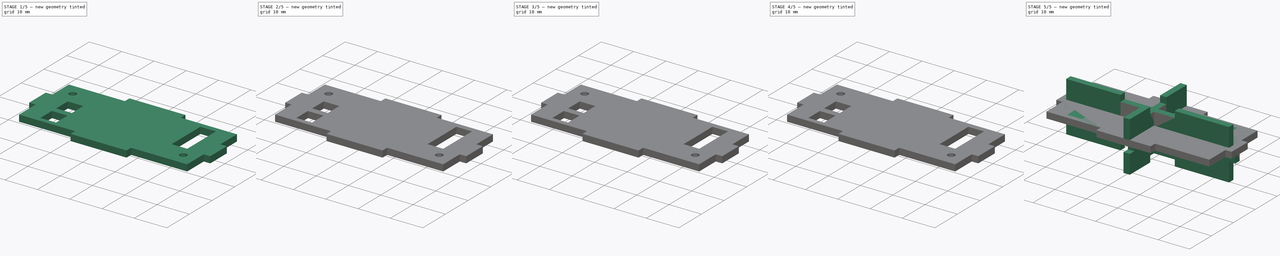
[diagram: build sequence overview — one tinted view per stage of 5, left to right]
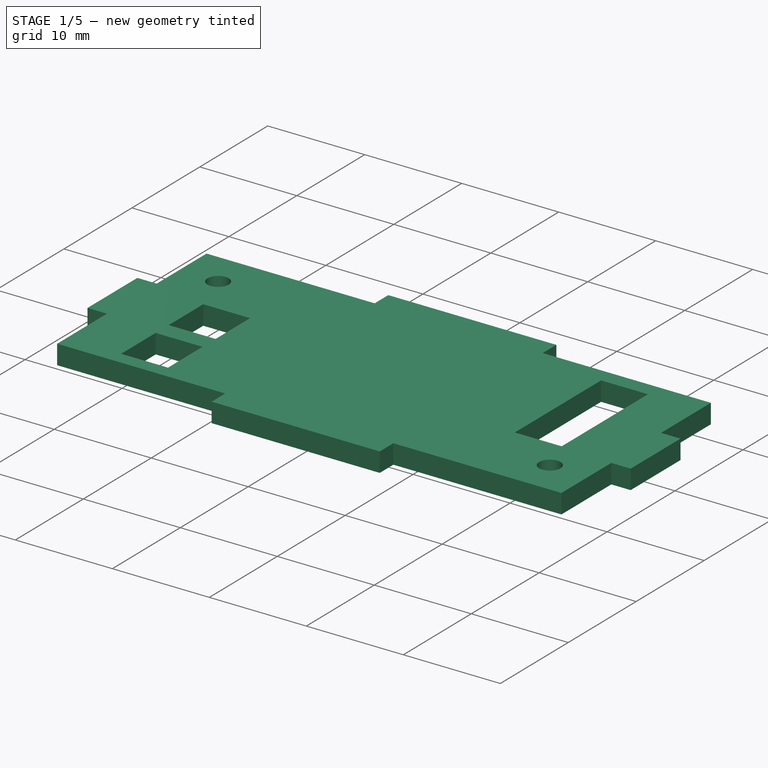
[diagram: stage 1 of 5 — iso view after this stage's code; geometry added in this stage tinted green]
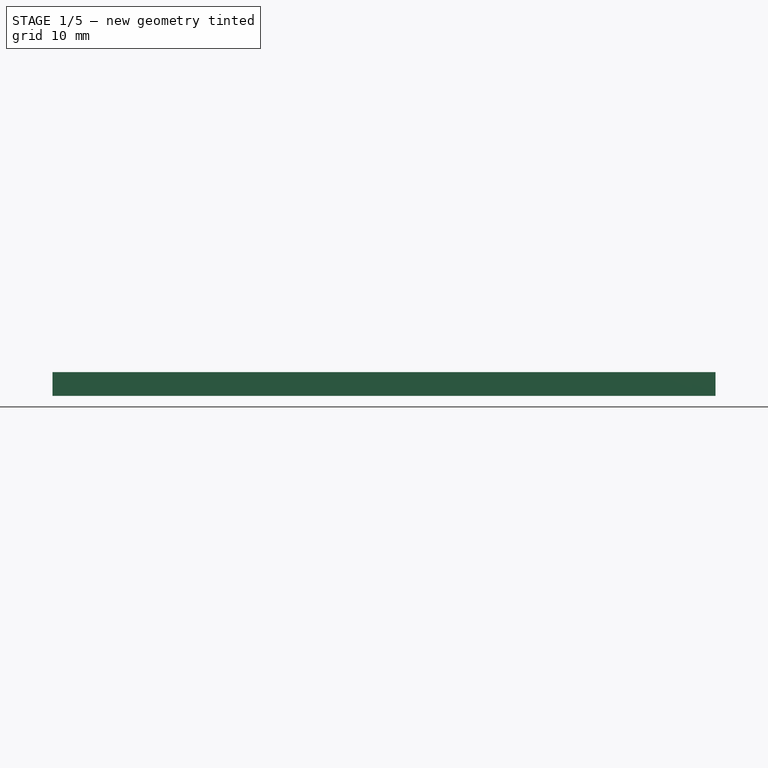
[diagram: stage 1 of 5 — front view after this stage's code; geometry added in this stage tinted green]
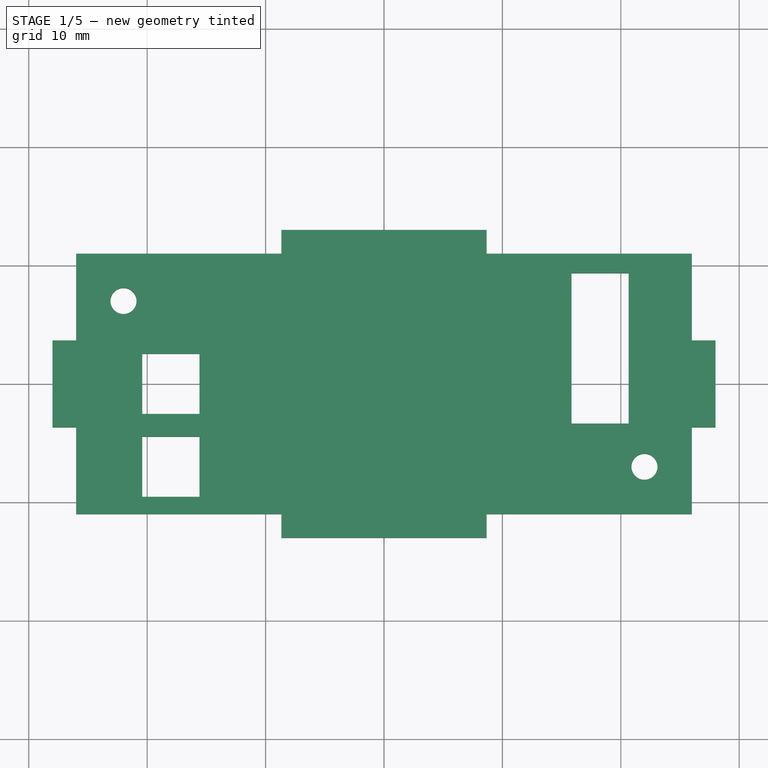
[diagram: stage 1 of 5 — top view after this stage's code; geometry added in this stage tinted green]
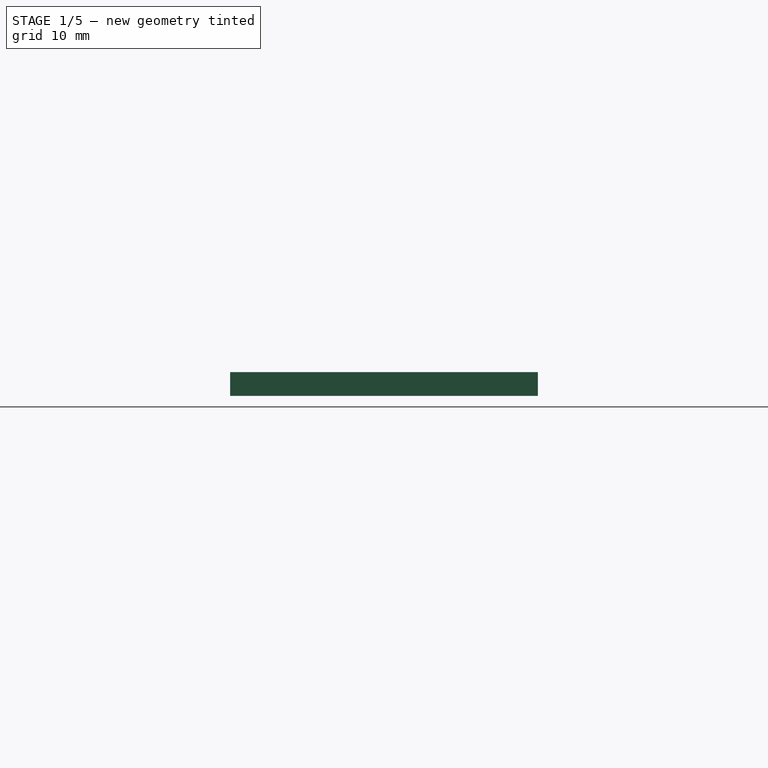
[diagram: stage 1 of 5 — right view after this stage's code; geometry added in this stage tinted green]
FCSTD DOCUMENT  (FreeCAD 0.19RUnknown)
Label: box
License: All rights reserved
LicenseURL: http://en.wikipedia.org/wiki/All_rights_reserved
objects: Part::Feature×62, App::Part×35, Sketcher::SketchObject×31, PartDesign::Pad×18, PartDesign::Body×18, PartDesign::Pocket×13, Spreadsheet::Sheet×1, PartDesign::ShapeBinder×1
note: 174 computed .brp shape members not serialized (recipe doc carries the construction recipe); baked Part::Feature solids carry a one-line shape summary decoded from their .brp

FEATURE [PartDesign::Body] Body  label="Bottom"
  Group = -> [Sketch,Pad]
  Origin = -> Origin035
  Placement = pos=(-26,-11,0) rot=(0,0,1;0rad)
  Tip = -> Pad
  expr: .Placement.Base.y = -<<p>>.iw / 2
  expr: .Placement.Base.x = -<<p>>.il / 2
FEATURE [PartDesign::Pad] Pad001
  AllowMultiFace = false
  Direction = (1,1,1)
  Length = 2
  Length2 = 100
  Profile = -> Sketch
  Type = 0
  expr: Length = <<p>>.wt
FEATURE [Sketcher::SketchObject] Sketch001
  MapMode = 5
  Placement = pos=(0,0,2) rot=(0,0,1;0rad)
  Support = -> [Pad001]
  expr: Constraints[11] = 3mm - 12.7mm / 2
  expr: Constraints[9] = 18.25mm - 4.83mm / 2
  sketch-geometry (4):
    g0: LineSegment StartX=15.835 StartY=9.35 StartZ=0 EndX=20.665 EndY=9.35 EndZ=0
    g1: LineSegment StartX=20.665 StartY=9.35 StartZ=0 EndX=20.665 EndY=-3.35 EndZ=0
    g2: LineSegment StartX=20.665 StartY=-3.35 StartZ=0 EndX=15.835 EndY=-3.35 EndZ=0
    g3: LineSegment StartX=15.835 StartY=-3.35 StartZ=0 EndX=15.835 EndY=9.35 EndZ=0
  constraints (12):
    c: Coincident(g0,g1)
    c: Coincident(g1,g2)
    c: Coincident(g2,g3)
    c: Coincident(g3,g0)
    c: Horizontal(g0)
    c: Horizontal(g2)
    c: Vertical(g1)
    c: Vertical(g3)
    c: DistanceX(g0,g0) = 4.83
    c: DistanceX(g-1,g2) = 15.835
    c: DistanceY(g1,g1) = 12.7
    c: DistanceY(g-1,g2) = -3.35
FEATURE [PartDesign::Pocket] Pocket
  AllowMultiFace = false
  BaseFeature = -> Pad001
  Length = 2
  Length2 = 100
  Profile = -> Sketch001
  Type = 0
  expr: Length = <<p>>.wt
FEATURE [PartDesign::Body] Body005  label="right"
  Group = -> [Pad005,Sketch005]
  Origin = -> Origin040
  Placement = pos=(0,-11,8) rot=(0,0,1;0rad)
  Tip = -> Pad005
  expr: .Placement.Base.z = <<p>>.ih / 2 + <<p>>.wt
  expr: .Placement.Base.y = -<<p>>.iw / 2
FEATURE [Sketcher::SketchObject] Sketch006
  MapMode = 5
  Placement = pos=(0,0,2) rot=(0,0,1;0rad)
  Support = -> [Pocket]
  expr: Constraints[10] = 18mm - 4.83mm / 2
  expr: Constraints[11] = 0mm + 5.08mm / 2
  sketch-geometry (4):
    g0: LineSegment StartX=-20.415 StartY=2.54 StartZ=0 EndX=-15.585 EndY=2.54 EndZ=0
    g1: LineSegment StartX=-15.585 StartY=2.54 StartZ=0 EndX=-15.585 EndY=-2.54 EndZ=0
    g2: LineSegment StartX=-15.585 StartY=-2.54 StartZ=0 EndX=-20.415 EndY=-2.54 EndZ=0
    g3: LineSegment StartX=-20.415 StartY=-2.54 StartZ=0 EndX=-20.415 EndY=2.54 EndZ=0
  constraints (12):
    c: Coincident(g0,g1)
    c: Coincident(g1,g2)
    c: Coincident(g2,g3)
    c: Coincident(g3,g0)
    c: Horizontal(g0)
    c: Horizontal(g2)
    c: Vertical(g1)
    c: Vertical(g3)
    c: DistanceX(g0,g0) = 4.83
    c: DistanceY(g3,g3) = 5.08
    c: DistanceX(g1,g-1) = 15.585
    c: DistanceY(g-1,g0) = 2.54
FEATURE [PartDesign::Pocket] Pocket001
  BaseFeature = -> Pocket
  Length = 2
  Length2 = 100
  Profile = -> Sketch006
  Type = 0
  expr: Length = <<p>>.wt
FEATURE [Sketcher::SketchObject] Sketch007
  MapMode = 5
  Placement = pos=(0,0,2) rot=(0,0,1;0rad)
  Support = -> [Pocket001]
  expr: Constraints[11] = 18mm - 4.83mm / 2
  expr: Constraints[10] = 7mm - 5.08mm / 2
  sketch-geometry (4):
    g0: LineSegment StartX=-20.415 StartY=-4.46 StartZ=0 EndX=-15.585 EndY=-4.46 EndZ=0
    g1: LineSegment StartX=-15.585 StartY=-4.46 StartZ=0 EndX=-15.585 EndY=-9.54 EndZ=0
    g2: LineSegment StartX=-15.585 StartY=-9.54 StartZ=0 EndX=-20.415 EndY=-9.54 EndZ=0
    g3: LineSegment StartX=-20.415 StartY=-9.54 StartZ=0 EndX=-20.415 EndY=-4.46 EndZ=0
  constraints (12):
    c: Coincident(g0,g1)
    c: Coincident(g1,g2)
    c: Coincident(g2,g3)
    c: Coincident(g3,g0)
    c: Horizontal(g0)
    c: Horizontal(g2)
    c: Vertical(g1)
    c: Vertical(g3)
    c: DistanceX(g0,g0) = 4.83
    c: DistanceY(g1,g1) = 5.08
    c: DistanceY(g0,g-1) = 4.46
    c: DistanceX(g0,g-1) = 15.585
FEATURE [PartDesign::Pocket] Pocket002
  BaseFeature = -> Pocket001
  Length = 2
  Length2 = 100
  Profile = -> Sketch007
  Type = 0
  expr: Length = <<p>>.wt
FEATURE [PartDesign::Body] Body017  label="corner008"
  Group = -> [Sketch027,Pad016,Sketch028,Pocket009]
  Origin = -> Origin051
  Placement = pos=(-4,-18,10) rot=(0,0,1;0rad)
  Tip = -> Pocket009
FEATURE [Sketcher::SketchObject] Sketch029
  MapMode = 5
  Placement = pos=(0,0,2) rot=(0,0,1;0rad)
  Support = -> [Pocket002]
  sketch-geometry (1):
    g0: Circle CenterX=-22 CenterY=7 CenterZ=0 NormalX=0 NormalY=0 NormalZ=1 AngleXU=0 Radius=1.1
  constraints (3):
    c: Radius(g0) = 1.1
    c: DistanceX(g0,g-1) = 22
    c: DistanceY(g-1,g0) = 7
FEATURE [PartDesign::Pocket] Pocket011
  BaseFeature = -> Pocket002
  Length = 2
  Length2 = 100
  Profile = -> Sketch029
  Type = 0
FEATURE [Sketcher::SketchObject] Sketch030
  MapMode = 5
  Placement = pos=(0,0,2) rot=(0,0,1;0rad)
  Support = -> [Pocket011]
  sketch-geometry (1):
    g0: Circle CenterX=22 CenterY=-7 CenterZ=0 NormalX=0 NormalY=0 NormalZ=1 AngleXU=0 Radius=1.1
  constraints (3):
    c: Radius(g0) = 1.1
    c: DistanceX(g-1,g0) = 22
    c: DistanceY(g0,g-1) = 7
FEATURE [PartDesign::Pocket] Pocket012
  BaseFeature = -> Pocket011
  Length = 2
  Length2 = 100
  Profile = -> Sketch030
  Type = 0
FEATURE [PartDesign::Body] Body001  label="Top"
  Group = -> [Pad001,Sketch001,Pocket,Sketch006,Pocket001,Sketch007,Pocket002,Sketch029,Pocket011,Sketch030,Pocket012]
  Origin = -> Origin036
  Placement = pos=(-26,-11,14) rot=(0,0,1;0rad)
  Tip = -> Pocket012
  expr: .Placement.Base.y = -<<p>>.iw / 2
  expr: .Placement.Base.x = -<<p>>.il / 2
  expr: .Placement.Base.z = <<p>>.ih + <<p>>.wt
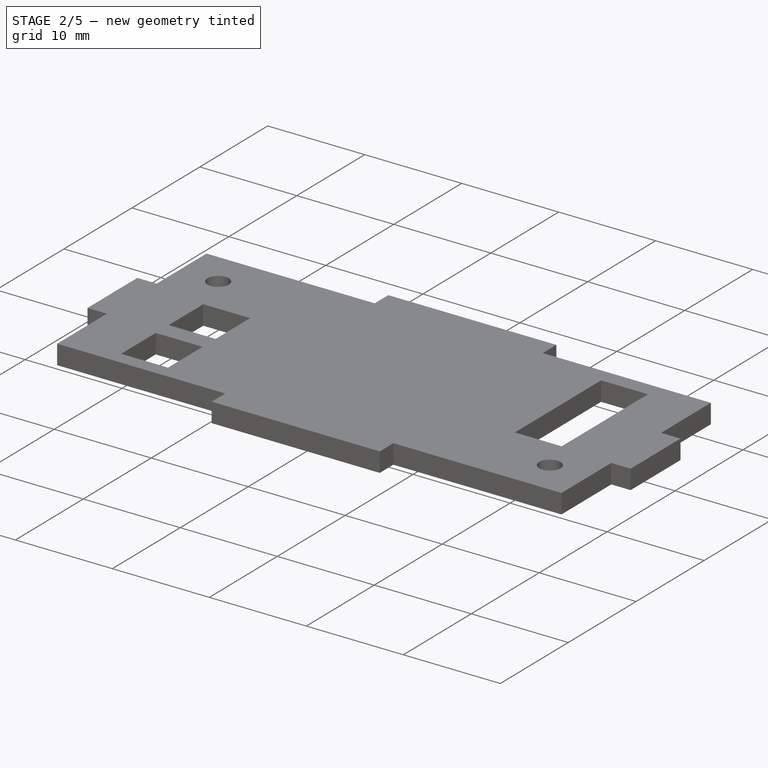
[diagram: stage 2 of 5 — iso view after this stage's code; geometry added in this stage tinted green]
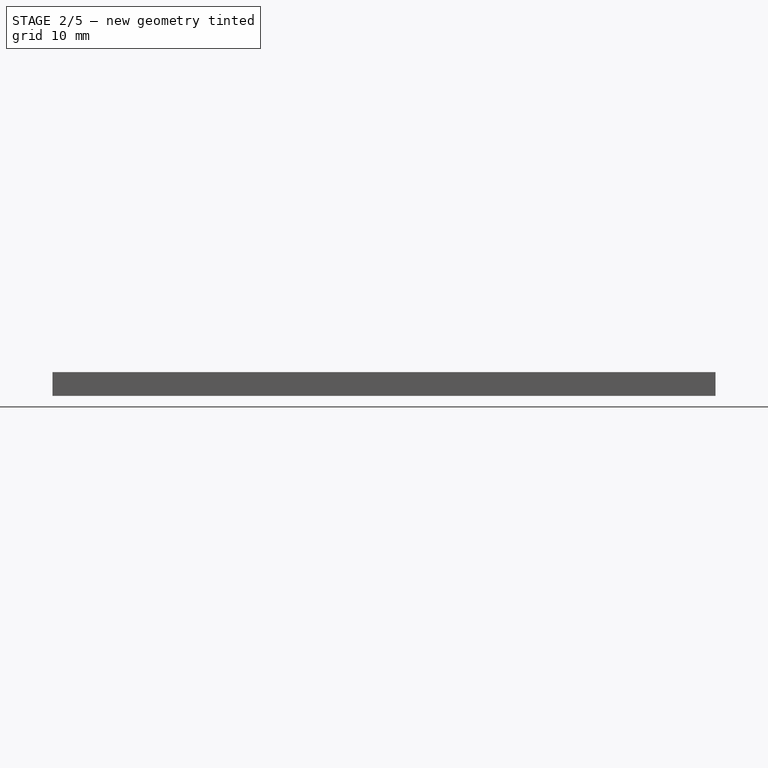
[diagram: stage 2 of 5 — front view after this stage's code; geometry added in this stage tinted green]
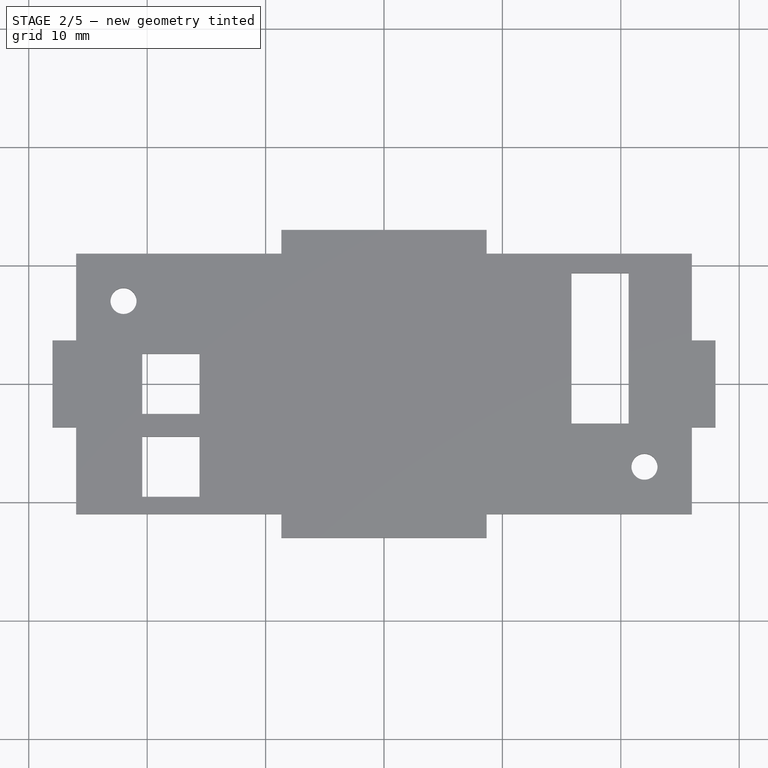
[diagram: stage 2 of 5 — top view after this stage's code; geometry added in this stage tinted green]
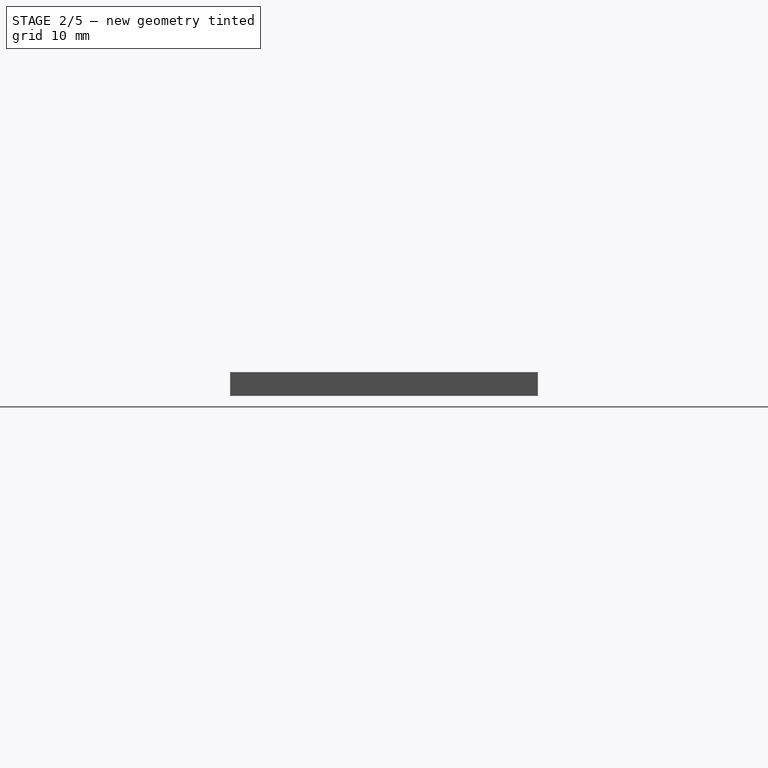
[diagram: stage 2 of 5 — right view after this stage's code; geometry added in this stage tinted green]
FEATURE [PartDesign::Body] Body014  label="corner005"
  Group = -> [Sketch020,Pad014,Sketch022,Pocket007]
  Origin = -> Origin049
  Placement = pos=(-48,-4,10) rot=(0,0,1;3.14159rad)
  Tip = -> Pocket007
FEATURE [Sketcher::SketchObject] Sketch023
  MapMode = 5
  Support = -> [XY_Plane049]
  sketch-geometry (5):
    g0: LineSegment StartX=4 StartY=3 StartZ=0 EndX=4 EndY=-4 EndZ=0
    g1: LineSegment StartX=4 StartY=-4 StartZ=0 EndX=-3 EndY=-4 EndZ=0
    g2: LineSegment StartX=-1 StartY=3 StartZ=0 EndX=4 EndY=3 EndZ=0
    g3: LineSegment StartX=-3 StartY=1 StartZ=0 EndX=-3 EndY=-4 EndZ=0
    g4: ArcOfCircle CenterX=-1 CenterY=1 CenterZ=0 NormalX=0 NormalY=0 NormalZ=1 AngleXU=0 Radius=2 StartAngle=1.5708 EndAngle=3.14159
  constraints (16):
    c: Coincident(g0,g1)
    c: Horizontal(g1)
    c: Vertical(g0)
    c: DistanceX(g-1,g0) = 4
    c: DistanceY(g0,g-1) = 4
    c: DistanceY(g0,g0) = 7
    c: Coincident(g2,g0)
    c: Coincident(g3,g1)
    c: Vertical(g3)
    c: Horizontal(g2)
    c: DistanceX(g2,g2) = 5
    c: DistanceY(g3,g3) = 5
    c: Coincident(g4,g3)
    c: Coincident(g4,g2)
    c: Vertical(g4,g2)
    c: Horizontal(g3,g4)
FEATURE [PartDesign::Pad] Pad015
  Direction = (1,1,1)
  Length = 2
  Length2 = 100
  Profile = -> Sketch023
  Type = 0
FEATURE [Sketcher::SketchObject] Sketch024
  MapMode = 5
  Placement = pos=(0,0,2) rot=(0,0,1;0rad)
  Support = -> [Pad015]
  sketch-geometry (1):
    g0: Circle CenterX=0 CenterY=0 CenterZ=0 NormalX=0 NormalY=0 NormalZ=1 AngleXU=0 Radius=1.6
  constraints (2):
    c: Coincident(g0,g-1)
    c: Radius(g0) = 1.6
FEATURE [PartDesign::Pocket] Pocket008
  BaseFeature = -> Pad015
  Length = 2
  Length2 = 100
  Profile = -> Sketch024
  Type = 0
FEATURE [PartDesign::Body] Body015  label="corner006"
  Group = -> [Sketch023,Pad015,Sketch024,Pocket008]
  Origin = -> Origin050
  Placement = pos=(-48,-4,12) rot=(0,0,1;3.14159rad)
  Tip = -> Pocket008
FEATURE [Sketcher::SketchObject] Sketch025
  MapMode = 5
  Support = -> [XY_Plane049]
  sketch-geometry (5):
    g0: LineSegment StartX=4 StartY=3 StartZ=0 EndX=4 EndY=-4 EndZ=0
    g1: LineSegment StartX=4 StartY=-4 StartZ=0 EndX=-3 EndY=-4 EndZ=0
    g2: LineSegment StartX=-1 StartY=3 StartZ=0 EndX=4 EndY=3 EndZ=0
    g3: LineSegment StartX=-3 StartY=1 StartZ=0 EndX=-3 EndY=-4 EndZ=0
    g4: ArcOfCircle CenterX=-1 CenterY=1 CenterZ=0 NormalX=0 NormalY=0 NormalZ=1 AngleXU=0 Radius=2 StartAngle=1.5708 EndAngle=3.14159
  constraints (16):
    c: Coincident(g0,g1)
    c: Horizontal(g1)
    c: Vertical(g0)
    c: DistanceX(g-1,g0) = 4
    c: DistanceY(g0,g-1) = 4
    c: DistanceY(g0,g0) = 7
    c: Coincident(g2,g0)
    c: Coincident(g3,g1)
    c: Vertical(g3)
    c: Horizontal(g2)
    c: DistanceX(g2,g2) = 5
    c: DistanceY(g3,g3) = 5
    c: Coincident(g4,g3)
    c: Coincident(g4,g2)
    c: Vertical(g4,g2)
    c: Horizontal(g3,g4)
FEATURE [Sketcher::SketchObject] Sketch027
  MapMode = 5
  Support = -> [XY_Plane052]
  sketch-geometry (5):
    g0: LineSegment StartX=4 StartY=3 StartZ=0 EndX=4 EndY=-4 EndZ=0
    g1: LineSegment StartX=4 StartY=-4 StartZ=0 EndX=-3 EndY=-4 EndZ=0
    g2: LineSegment StartX=-1 StartY=3 StartZ=0 EndX=4 EndY=3 EndZ=0
    g3: LineSegment StartX=-3 StartY=1 StartZ=0 EndX=-3 EndY=-4 EndZ=0
    g4: ArcOfCircle CenterX=-1 CenterY=1 CenterZ=0 NormalX=0 NormalY=0 NormalZ=1 AngleXU=0 Radius=2 StartAngle=1.5708 EndAngle=3.14159
  constraints (16):
    c: Coincident(g0,g1)
    c: Horizontal(g1)
    c: Vertical(g0)
    c: DistanceX(g-1,g0) = 4
    c: DistanceY(g0,g-1) = 4
    c: DistanceY(g0,g0) = 7
    c: Coincident(g2,g0)
    c: Coincident(g3,g1)
    c: Vertical(g3)
    c: Horizontal(g2)
    c: DistanceX(g2,g2) = 5
    c: DistanceY(g3,g3) = 5
    c: Coincident(g4,g3)
    c: Coincident(g4,g2)
    c: Vertical(g4,g2)
    c: Horizontal(g3,g4)
FEATURE [PartDesign::Pad] Pad016
  Direction = (1,1,1)
  Length = 2
  Length2 = 100
  Profile = -> Sketch027
  Type = 0
FEATURE [PartDesign::Pad] Pad017
  Direction = (1,1,1)
  Length = 2
  Length2 = 100
  Profile = -> Sketch025
  Type = 0
FEATURE [Sketcher::SketchObject] Sketch026
  MapMode = 5
  Placement = pos=(0,0,2) rot=(0,0,1;0rad)
  Support = -> [Pad017]
  sketch-geometry (1):
    g0: Circle CenterX=0 CenterY=0 CenterZ=0 NormalX=0 NormalY=0 NormalZ=1 AngleXU=0 Radius=1.6
  constraints (2):
    c: Coincident(g0,g-1)
    c: Radius(g0) = 1.6
FEATURE [PartDesign::Pocket] Pocket010
  BaseFeature = -> Pad017
  Length = 2
  Length2 = 100
  Profile = -> Sketch026
  Type = 0
FEATURE [PartDesign::Body] Body016  label="corner007"
  Group = -> [Sketch025,Pad017,Sketch026,Pocket010]
  Origin = -> Origin052
  Placement = pos=(-4,-18,12) rot=(0,0,1;0rad)
  Tip = -> Pocket010
FEATURE [Sketcher::SketchObject] Sketch028
  MapMode = 5
  Placement = pos=(0,0,2) rot=(0,0,1;0rad)
  Support = -> [Pad016]
  sketch-geometry (1):
    g0: Circle CenterX=0 CenterY=0 CenterZ=0 NormalX=0 NormalY=0 NormalZ=1 AngleXU=0 Radius=1.6
  constraints (2):
    c: Coincident(g0,g-1)
    c: Radius(g0) = 1.6
FEATURE [PartDesign::Pocket] Pocket009
  BaseFeature = -> Pad016
  Length = 2
  Length2 = 100
  Profile = -> Sketch028
  Type = 0
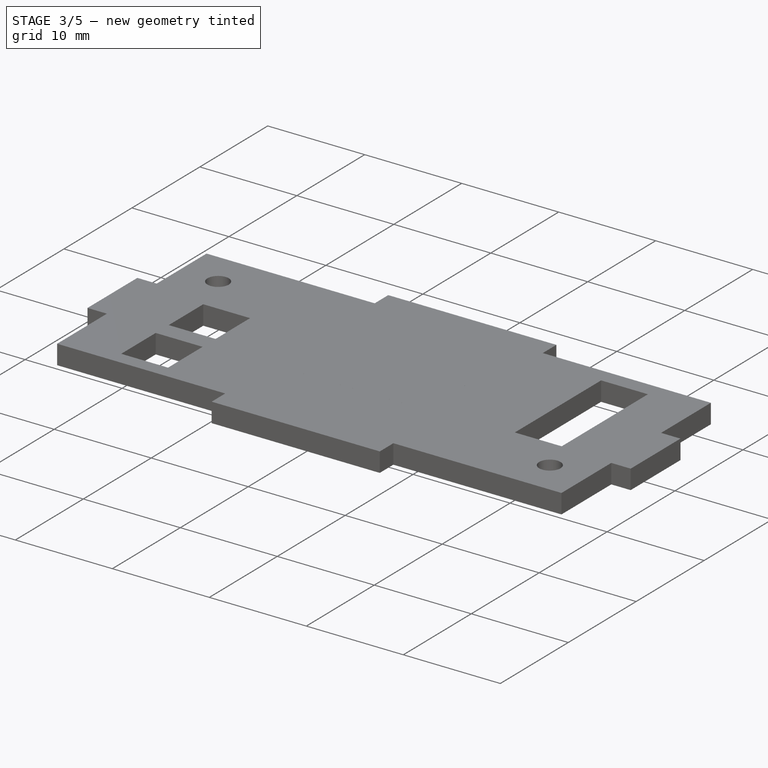
[diagram: stage 3 of 5 — iso view after this stage's code; geometry added in this stage tinted green]
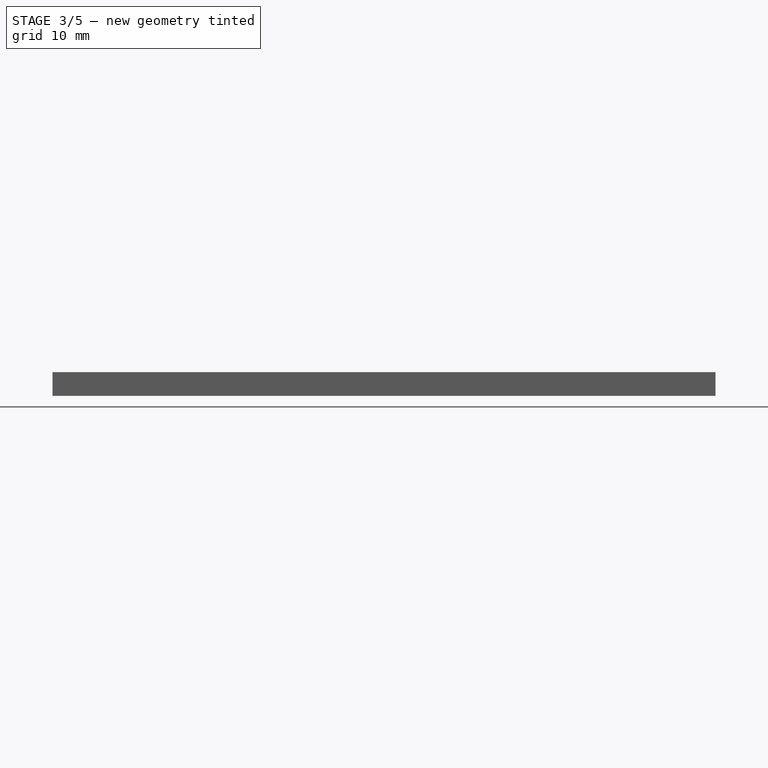
[diagram: stage 3 of 5 — front view after this stage's code; geometry added in this stage tinted green]
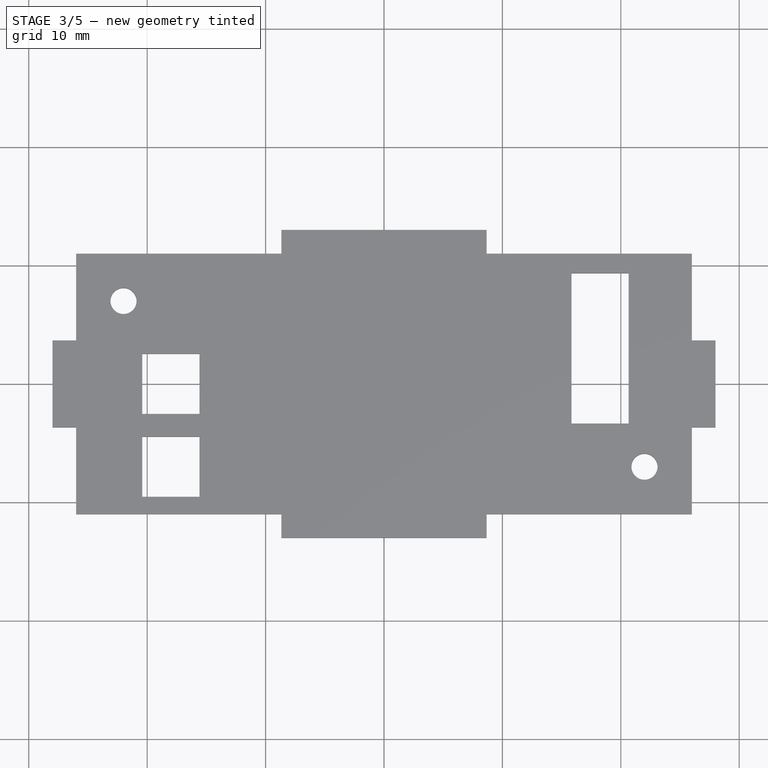
[diagram: stage 3 of 5 — top view after this stage's code; geometry added in this stage tinted green]
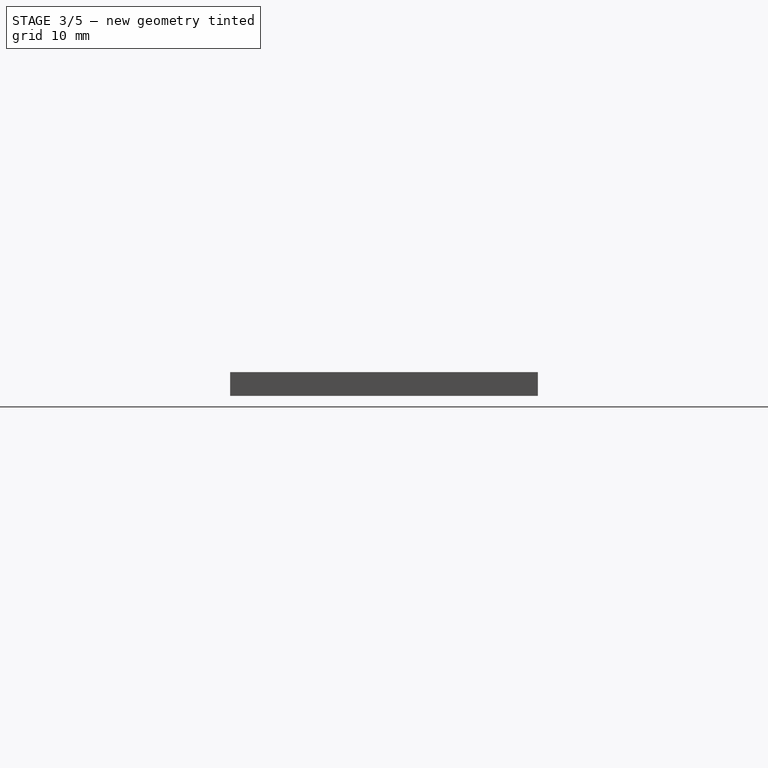
[diagram: stage 3 of 5 — right view after this stage's code; geometry added in this stage tinted green]
FEATURE [PartDesign::Body] Body008  label="Combi3"
  Group = -> [Sketch012,Pad008,Sketch013,Pocket005]
  Origin = -> Origin043
  Placement = pos=(-45,-4,2) rot=(0,0,1;3.14159rad)
  Tip = -> Pocket005
FEATURE [Sketcher::SketchObject] Sketch014
  MapMode = 5
  Support = -> [XY_Plane044]
  sketch-geometry (5):
    g0: LineSegment StartX=7 StartY=3 StartZ=0 EndX=7 EndY=-4 EndZ=0
    g1: LineSegment StartX=7 StartY=-4 StartZ=0 EndX=-6 EndY=-4 EndZ=0
    g2: ArcOfCircle CenterX=-5 CenterY=2 CenterZ=0 NormalX=0 NormalY=0 NormalZ=1 AngleXU=0 Radius=1 StartAngle=1.5708 EndAngle=3.14159
    g3: LineSegment StartX=-5 StartY=3 StartZ=0 EndX=7 EndY=3 EndZ=0
    g4: LineSegment StartX=-6 StartY=-4 StartZ=0 EndX=-6 EndY=2 EndZ=0
  constraints (16):
    c: Coincident(g0,g1)
    c: Horizontal(g1)
    c: Vertical(g0)
    c: DistanceX(g1,g1) = 13
    c: DistanceY(g0,g0) = 7
    c: DistanceY(g1,g-1) = 4
    c: DistanceX(g-1,g0) = 7
    c: Horizontal(g2,g0)
    c: Vertical(g2,g1)
    c: Radius(g2) = 1
    c: Horizontal(g2,g2)
    c: Vertical(g2,g2)
    c: Coincident(g3,g2)
    c: Coincident(g3,g0)
    c: Coincident(g4,g1)
    c: Coincident(g2,g4)
FEATURE [PartDesign::Pad] Pad009
  Direction = (1,1,1)
  Length = 2
  Length2 = 100
  Profile = -> Sketch014
  Type = 0
  expr: Length = <<p>>.wt
FEATURE [PartDesign::Body] Body009  label="Combi4"
  Group = -> [Sketch014,Pad009,Sketch015,Pocket006]
  Origin = -> Origin044
  Placement = pos=(-45,-4,4) rot=(0,0,1;3.14159rad)
  Tip = -> Pocket006
FEATURE [Sketcher::SketchObject] Sketch016
  MapMode = 5
  Support = -> [XY_Plane045]
  sketch-geometry (5):
    g0: LineSegment StartX=4 StartY=3 StartZ=0 EndX=4 EndY=-4 EndZ=0
    g1: LineSegment StartX=4 StartY=-4 StartZ=0 EndX=-3 EndY=-4 EndZ=0
    g2: LineSegment StartX=-1 StartY=3 StartZ=0 EndX=4 EndY=3 EndZ=0
    g3: LineSegment StartX=-3 StartY=1 StartZ=0 EndX=-3 EndY=-4 EndZ=0
    g4: ArcOfCircle CenterX=-1 CenterY=1 CenterZ=0 NormalX=0 NormalY=0 NormalZ=1 AngleXU=0 Radius=2 StartAngle=1.5708 EndAngle=3.14159
  constraints (16):
    c: Coincident(g0,g1)
    c: Horizontal(g1)
    c: Vertical(g0)
    c: DistanceX(g-1,g0) = 4
    c: DistanceY(g0,g-1) = 4
    c: DistanceY(g0,g0) = 7
    c: Coincident(g2,g0)
    c: Coincident(g3,g1)
    c: Vertical(g3)
    c: Horizontal(g2)
    c: DistanceX(g2,g2) = 5
    c: DistanceY(g3,g3) = 5
    c: Coincident(g4,g3)
    c: Coincident(g4,g2)
    c: Vertical(g4,g2)
    c: Horizontal(g3,g4)
FEATURE [PartDesign::Pad] Pad010
  Direction = (1,1,1)
  Length = 2
  Length2 = 100
  Profile = -> Sketch016
  Type = 0
FEATURE [Sketcher::SketchObject] Sketch017
  MapMode = 5
  Support = -> [XY_Plane046]
  sketch-geometry (5):
    g0: LineSegment StartX=4 StartY=3 StartZ=0 EndX=4 EndY=-4 EndZ=0
    g1: LineSegment StartX=4 StartY=-4 StartZ=0 EndX=-3 EndY=-4 EndZ=0
    g2: LineSegment StartX=-1 StartY=3 StartZ=0 EndX=4 EndY=3 EndZ=0
    g3: LineSegment StartX=-3 StartY=1 StartZ=0 EndX=-3 EndY=-4 EndZ=0
    g4: ArcOfCircle CenterX=-1 CenterY=1 CenterZ=0 NormalX=0 NormalY=0 NormalZ=1 AngleXU=0 Radius=2 StartAngle=1.5708 EndAngle=3.14159
  constraints (16):
    c: Coincident(g0,g1)
    c: Horizontal(g1)
    c: Vertical(g0)
    c: DistanceX(g-1,g0) = 4
    c: DistanceY(g0,g-1) = 4
    c: DistanceY(g0,g0) = 7
    c: Coincident(g2,g0)
    c: Coincident(g3,g1)
    c: Vertical(g3)
    c: Horizontal(g2)
    c: DistanceX(g2,g2) = 5
    c: DistanceY(g3,g3) = 5
    c: Coincident(g4,g3)
    c: Coincident(g4,g2)
    c: Vertical(g4,g2)
    c: Horizontal(g3,g4)
FEATURE [PartDesign::Pad] Pad011
  Direction = (1,1,1)
  Length = 2
  Length2 = 100
  Profile = -> Sketch017
  Type = 0
FEATURE [PartDesign::Body] Body011  label="corner002"
  Group = -> [Sketch017,Pad011]
  Origin = -> Origin046
  Placement = pos=(-4,-18,8) rot=(0,0,1;0rad)
  Tip = -> Pad011
FEATURE [Sketcher::SketchObject] Sketch018
  MapMode = 5
  Support = -> [XY_Plane047]
  sketch-geometry (5):
    g0: LineSegment StartX=4 StartY=3 StartZ=0 EndX=4 EndY=-4 EndZ=0
    g1: LineSegment StartX=4 StartY=-4 StartZ=0 EndX=-3 EndY=-4 EndZ=0
    g2: LineSegment StartX=-1 StartY=3 StartZ=0 EndX=4 EndY=3 EndZ=0
    g3: LineSegment StartX=-3 StartY=1 StartZ=0 EndX=-3 EndY=-4 EndZ=0
    g4: ArcOfCircle CenterX=-1 CenterY=1 CenterZ=0 NormalX=0 NormalY=0 NormalZ=1 AngleXU=0 Radius=2 StartAngle=1.5708 EndAngle=3.14159
  constraints (16):
    c: Coincident(g0,g1)
    c: Horizontal(g1)
    c: Vertical(g0)
    c: DistanceX(g-1,g0) = 4
    c: DistanceY(g0,g-1) = 4
    c: DistanceY(g0,g0) = 7
    c: Coincident(g2,g0)
    c: Coincident(g3,g1)
    c: Vertical(g3)
    c: Horizontal(g2)
    c: DistanceX(g2,g2) = 5
    c: DistanceY(g3,g3) = 5
    c: Coincident(g4,g3)
    c: Coincident(g4,g2)
    c: Vertical(g4,g2)
    c: Horizontal(g3,g4)
FEATURE [PartDesign::Pad] Pad012
  Direction = (1,1,1)
  Length = 2
  Length2 = 100
  Profile = -> Sketch018
  Type = 0
FEATURE [PartDesign::Body] Body012  label="corner003"
  Group = -> [Sketch018,Pad012]
  Origin = -> Origin047
  Placement = pos=(-48,-4,6) rot=(0,0,1;3.14159rad)
  Tip = -> Pad012
FEATURE [Sketcher::SketchObject] Sketch019
  MapMode = 5
  Support = -> [XY_Plane048]
  sketch-geometry (5):
    g0: LineSegment StartX=4 StartY=3 StartZ=0 EndX=4 EndY=-4 EndZ=0
    g1: LineSegment StartX=4 StartY=-4 StartZ=0 EndX=-3 EndY=-4 EndZ=0
    g2: LineSegment StartX=-1 StartY=3 StartZ=0 EndX=4 EndY=3 EndZ=0
    g3: LineSegment StartX=-3 StartY=1 StartZ=0 EndX=-3 EndY=-4 EndZ=0
    g4: ArcOfCircle CenterX=-1 CenterY=1 CenterZ=0 NormalX=0 NormalY=0 NormalZ=1 AngleXU=0 Radius=2 StartAngle=1.5708 EndAngle=3.14159
  constraints (16):
    c: Coincident(g0,g1)
    c: Horizontal(g1)
    c: Vertical(g0)
    c: DistanceX(g-1,g0) = 4
    c: DistanceY(g0,g-1) = 4
    c: DistanceY(g0,g0) = 7
    c: Coincident(g2,g0)
    c: Coincident(g3,g1)
    c: Vertical(g3)
    c: Horizontal(g2)
    c: DistanceX(g2,g2) = 5
    c: DistanceY(g3,g3) = 5
    c: Coincident(g4,g3)
    c: Coincident(g4,g2)
    c: Vertical(g4,g2)
    c: Horizontal(g3,g4)
FEATURE [PartDesign::Pad] Pad013
  Direction = (1,1,1)
  Length = 2
  Length2 = 100
  Profile = -> Sketch019
  Type = 0
FEATURE [PartDesign::Body] Body013  label="corner004"
  Group = -> [Sketch019,Pad013]
  Origin = -> Origin048
  Placement = pos=(-48,-4,8) rot=(0,0,1;3.14159rad)
  Tip = -> Pad013
FEATURE [Sketcher::SketchObject] Sketch020
  MapMode = 5
  Support = -> [XY_Plane049]
  sketch-geometry (5):
    g0: LineSegment StartX=4 StartY=3 StartZ=0 EndX=4 EndY=-4 EndZ=0
    g1: LineSegment StartX=4 StartY=-4 StartZ=0 EndX=-3 EndY=-4 EndZ=0
    g2: LineSegment StartX=-1 StartY=3 StartZ=0 EndX=4 EndY=3 EndZ=0
    g3: LineSegment StartX=-3 StartY=1 StartZ=0 EndX=-3 EndY=-4 EndZ=0
    g4: ArcOfCircle CenterX=-1 CenterY=1 CenterZ=0 NormalX=0 NormalY=0 NormalZ=1 AngleXU=0 Radius=2 StartAngle=1.5708 EndAngle=3.14159
  constraints (16):
    c: Coincident(g0,g1)
    c: Horizontal(g1)
    c: Vertical(g0)
    c: DistanceX(g-1,g0) = 4
    c: DistanceY(g0,g-1) = 4
    c: DistanceY(g0,g0) = 7
    c: Coincident(g2,g0)
    c: Coincident(g3,g1)
    c: Vertical(g3)
    c: Horizontal(g2)
    c: DistanceX(g2,g2) = 5
    c: DistanceY(g3,g3) = 5
    c: Coincident(g4,g3)
    c: Coincident(g4,g2)
    c: Vertical(g4,g2)
    c: Horizontal(g3,g4)
FEATURE [PartDesign::Pad] Pad014
  Direction = (1,1,1)
  Length = 2
  Length2 = 100
  Profile = -> Sketch020
  Type = 0
FEATURE [PartDesign::ShapeBinder] CopyPad014
  Placement = pos=(0,0,2) rot=(0,0,1;0rad)
  TraceSupport = false
FEATURE [Sketcher::SketchObject] Sketch021
  MapMode = 5
  Placement = pos=(0,0,2) rot=(0,0,1;0rad)
  Support = -> [CopyPad014]
  sketch-geometry (1):
    g0: Circle CenterX=-44.9232 CenterY=15.0231 CenterZ=0 NormalX=0 NormalY=0 NormalZ=1 AngleXU=0 Radius=2.3315
FEATURE [PartDesign::Body] Body010  label="corner001"
  Group = -> [Sketch016,Pad010,CopyPad014,Sketch021]
  Origin = -> Origin045
  Placement = pos=(-4,-18,6) rot=(0,0,1;0rad)
  Tip = -> Pad010
FEATURE [Sketcher::SketchObject] Sketch022
  MapMode = 5
  Placement = pos=(0,0,2) rot=(0,0,1;0rad)
  Support = -> [Pad014]
  sketch-geometry (1):
    g0: Circle CenterX=0 CenterY=0 CenterZ=0 NormalX=0 NormalY=0 NormalZ=1 AngleXU=0 Radius=1.6
  constraints (2):
    c: Coincident(g0,g-1)
    c: Radius(g0) = 1.6
FEATURE [PartDesign::Pocket] Pocket007
  BaseFeature = -> Pad014
  Length = 2
  Length2 = 100
  Profile = -> Sketch022
  Type = 0
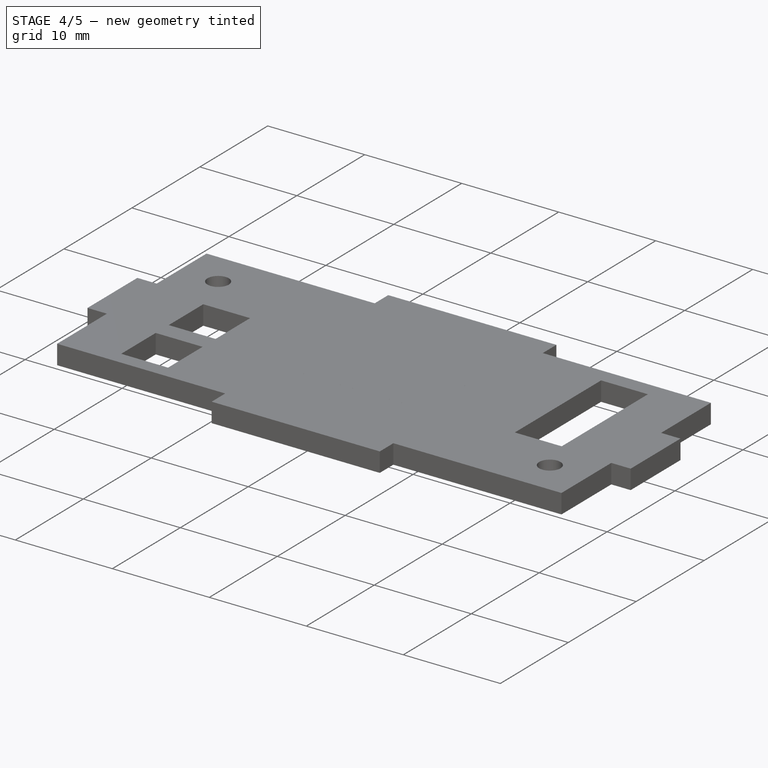
[diagram: stage 4 of 5 — iso view after this stage's code; geometry added in this stage tinted green]
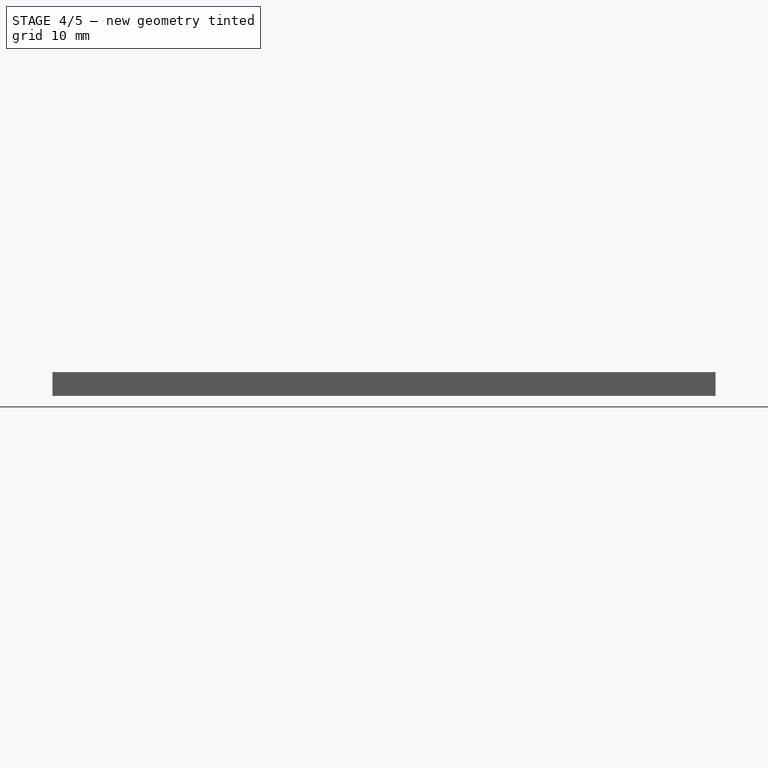
[diagram: stage 4 of 5 — front view after this stage's code; geometry added in this stage tinted green]
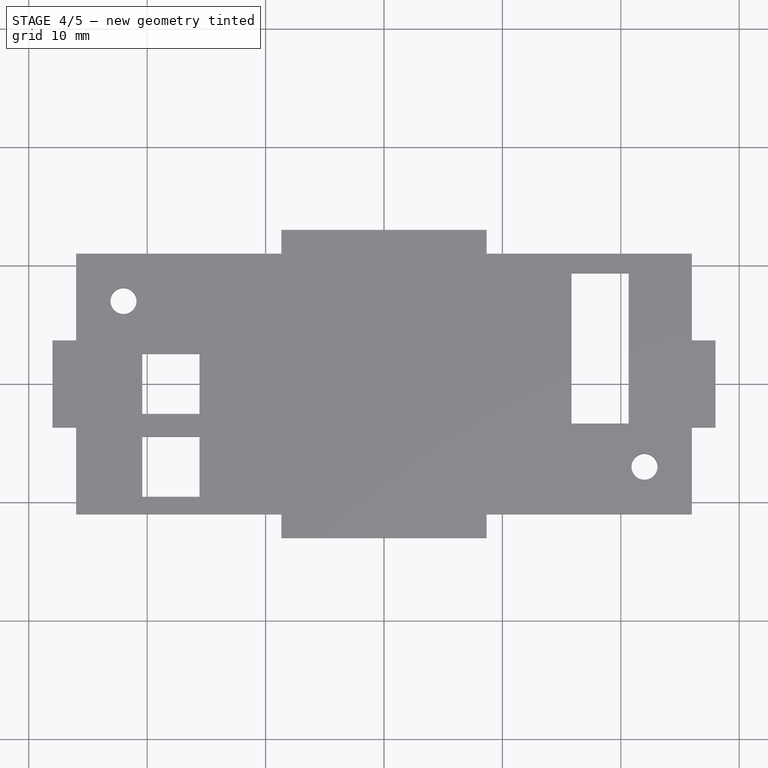
[diagram: stage 4 of 5 — top view after this stage's code; geometry added in this stage tinted green]
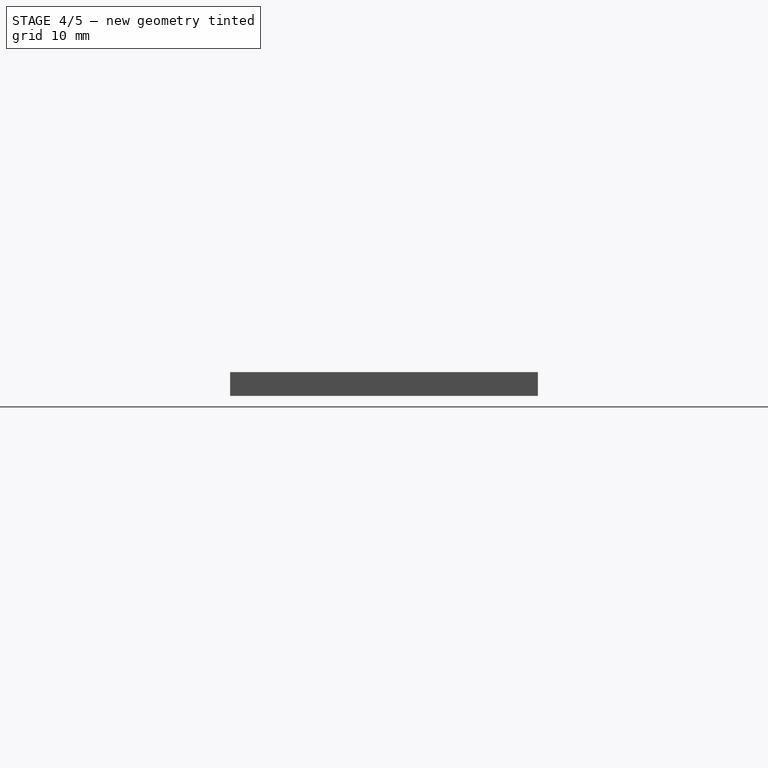
[diagram: stage 4 of 5 — right view after this stage's code; geometry added in this stage tinted green]
FEATURE [Sketcher::SketchObject] Sketch008
  MapMode = 5
  Support = -> [XY_Plane041]
  sketch-geometry (5):
    g0: LineSegment StartX=7 StartY=3 StartZ=0 EndX=7 EndY=-4 EndZ=0
    g1: LineSegment StartX=7 StartY=-4 StartZ=0 EndX=-6 EndY=-4 EndZ=0
    g2: ArcOfCircle CenterX=-5 CenterY=2 CenterZ=0 NormalX=0 NormalY=0 NormalZ=1 AngleXU=0 Radius=1 StartAngle=1.5708 EndAngle=3.14159
    g3: LineSegment StartX=-5 StartY=3 StartZ=0 EndX=7 EndY=3 EndZ=0
    g4: LineSegment StartX=-6 StartY=-4 StartZ=0 EndX=-6 EndY=2 EndZ=0
  constraints (16):
    c: Coincident(g0,g1)
    c: Horizontal(g1)
    c: Vertical(g0)
    c: DistanceX(g1,g1) = 13
    c: DistanceY(g0,g0) = 7
    c: DistanceY(g1,g-1) = 4
    c: DistanceX(g-1,g0) = 7
    c: Horizontal(g2,g0)
    c: Vertical(g2,g1)
    c: Radius(g2) = 1
    c: Horizontal(g2,g2)
    c: Vertical(g2,g2)
    c: Coincident(g3,g2)
    c: Coincident(g3,g0)
    c: Coincident(g4,g1)
    c: Coincident(g2,g4)
FEATURE [PartDesign::Pad] Pad006
  Direction = (1,1,1)
  Length = 2
  Length2 = 100
  Profile = -> Sketch008
  Type = 0
  expr: Length = <<p>>.wt
FEATURE [PartDesign::Body] Body006  label="Combi1"
  Group = -> [Sketch008,Pad006,Sketch009,Pocket003]
  Origin = -> Origin041
  Placement = pos=(-7,-18,2) rot=(0,0,1;0rad)
  Tip = -> Pocket003
FEATURE [Sketcher::SketchObject] Sketch010
  MapMode = 5
  Support = -> [XY_Plane042]
  sketch-geometry (5):
    g0: LineSegment StartX=7 StartY=3 StartZ=0 EndX=7 EndY=-4 EndZ=0
    g1: LineSegment StartX=7 StartY=-4 StartZ=0 EndX=-6 EndY=-4 EndZ=0
    g2: ArcOfCircle CenterX=-5 CenterY=2 CenterZ=0 NormalX=0 NormalY=0 NormalZ=1 AngleXU=0 Radius=1 StartAngle=1.5708 EndAngle=3.14159
    g3: LineSegment StartX=-5 StartY=3 StartZ=0 EndX=7 EndY=3 EndZ=0
    g4: LineSegment StartX=-6 StartY=-4 StartZ=0 EndX=-6 EndY=2 EndZ=0
  constraints (16):
    c: Coincident(g0,g1)
    c: Horizontal(g1)
    c: Vertical(g0)
    c: DistanceX(g1,g1) = 13
    c: DistanceY(g0,g0) = 7
    c: DistanceY(g1,g-1) = 4
    c: DistanceX(g-1,g0) = 7
    c: Horizontal(g2,g0)
    c: Vertical(g2,g1)
    c: Radius(g2) = 1
    c: Horizontal(g2,g2)
    c: Vertical(g2,g2)
    c: Coincident(g3,g2)
    c: Coincident(g3,g0)
    c: Coincident(g4,g1)
    c: Coincident(g2,g4)
FEATURE [PartDesign::Pad] Pad007
  Direction = (1,1,1)
  Length = 2
  Length2 = 100
  Profile = -> Sketch010
  Type = 0
  expr: Length = <<p>>.wt
FEATURE [Sketcher::SketchObject] Sketch011
  MapMode = 5
  Placement = pos=(0,0,2) rot=(0,0,1;0rad)
  Support = -> [Pad007]
  sketch-geometry (1):
    g0: Circle CenterX=-3 CenterY=0 CenterZ=0 NormalX=0 NormalY=0 NormalZ=1 AngleXU=0 Radius=1.6
  constraints (3):
    c: Radius(g0) = 1.6
    c: Horizontal(g0,g-1)
    c: DistanceX(g0,g-1) = 3
FEATURE [PartDesign::Pocket] Pocket004
  BaseFeature = -> Pad007
  Length = 2
  Length2 = 100
  Profile = -> Sketch011
  Type = 0
  expr: Length = <<p>>.wt
FEATURE [PartDesign::Body] Body007  label="Combi2"
  Group = -> [Sketch010,Pad007,Sketch011,Pocket004]
  Origin = -> Origin042
  Placement = pos=(-7,-18,4) rot=(0,0,1;0rad)
  Tip = -> Pocket004
FEATURE [Sketcher::SketchObject] Sketch012
  MapMode = 5
  Support = -> [XY_Plane043]
  sketch-geometry (5):
    g0: LineSegment StartX=7 StartY=3 StartZ=0 EndX=7 EndY=-4 EndZ=0
    g1: LineSegment StartX=7 StartY=-4 StartZ=0 EndX=-6 EndY=-4 EndZ=0
    g2: ArcOfCircle CenterX=-5 CenterY=2 CenterZ=0 NormalX=0 NormalY=0 NormalZ=1 AngleXU=0 Radius=1 StartAngle=1.5708 EndAngle=3.14159
    g3: LineSegment StartX=-5 StartY=3 StartZ=0 EndX=7 EndY=3 EndZ=0
    g4: LineSegment StartX=-6 StartY=-4 StartZ=0 EndX=-6 EndY=2 EndZ=0
  constraints (16):
    c: Coincident(g0,g1)
    c: Horizontal(g1)
    c: Vertical(g0)
    c: DistanceX(g1,g1) = 13
    c: DistanceY(g0,g0) = 7
    c: DistanceY(g1,g-1) = 4
    c: DistanceX(g-1,g0) = 7
    c: Horizontal(g2,g0)
    c: Vertical(g2,g1)
    c: Radius(g2) = 1
    c: Horizontal(g2,g2)
    c: Vertical(g2,g2)
    c: Coincident(g3,g2)
    c: Coincident(g3,g0)
    c: Coincident(g4,g1)
    c: Coincident(g2,g4)
FEATURE [PartDesign::Pad] Pad008
  Direction = (1,1,1)
  Length = 2
  Length2 = 100
  Profile = -> Sketch012
  Type = 0
  expr: Length = <<p>>.wt
FEATURE [Sketcher::SketchObject] Sketch013
  MapMode = 5
  Placement = pos=(0,0,2) rot=(0,0,1;0rad)
  Support = -> [Pad008]
  sketch-geometry (1):
    g0: Circle CenterX=-3 CenterY=0 CenterZ=0 NormalX=0 NormalY=0 NormalZ=1 AngleXU=0 Radius=1.6
  constraints (3):
    c: Radius(g0) = 1.6
    c: Horizontal(g0,g-1)
    c: DistanceX(g0,g-1) = 3
FEATURE [PartDesign::Pocket] Pocket005
  BaseFeature = -> Pad008
  Length = 2
  Length2 = 100
  Profile = -> Sketch013
  Type = 0
  expr: Length = <<p>>.wt
FEATURE [Sketcher::SketchObject] Sketch015
  MapMode = 5
  Placement = pos=(0,0,2) rot=(0,0,1;0rad)
  Support = -> [Pad009]
  sketch-geometry (1):
    g0: Circle CenterX=-3 CenterY=0 CenterZ=0 NormalX=0 NormalY=0 NormalZ=1 AngleXU=0 Radius=1.6
  constraints (3):
    c: Radius(g0) = 1.6
    c: Horizontal(g0,g-1)
    c: DistanceX(g0,g-1) = 3
FEATURE [PartDesign::Pocket] Pocket006
  BaseFeature = -> Pad009
  Length = 2
  Length2 = 100
  Profile = -> Sketch015
  Type = 0
  expr: Length = <<p>>.wt
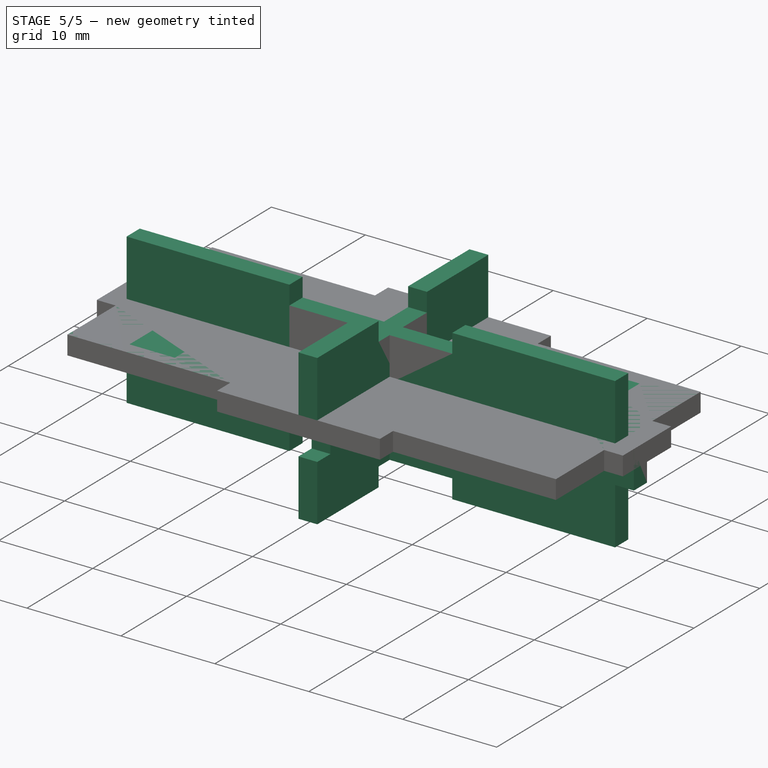
[diagram: stage 5 of 5 — iso view after this stage's code; geometry added in this stage tinted green]
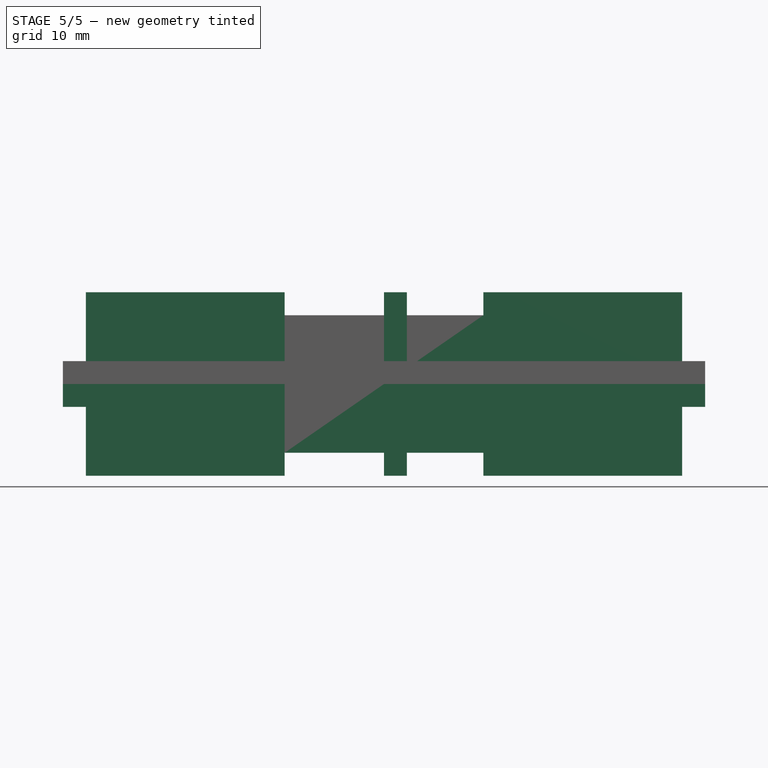
[diagram: stage 5 of 5 — front view after this stage's code; geometry added in this stage tinted green]
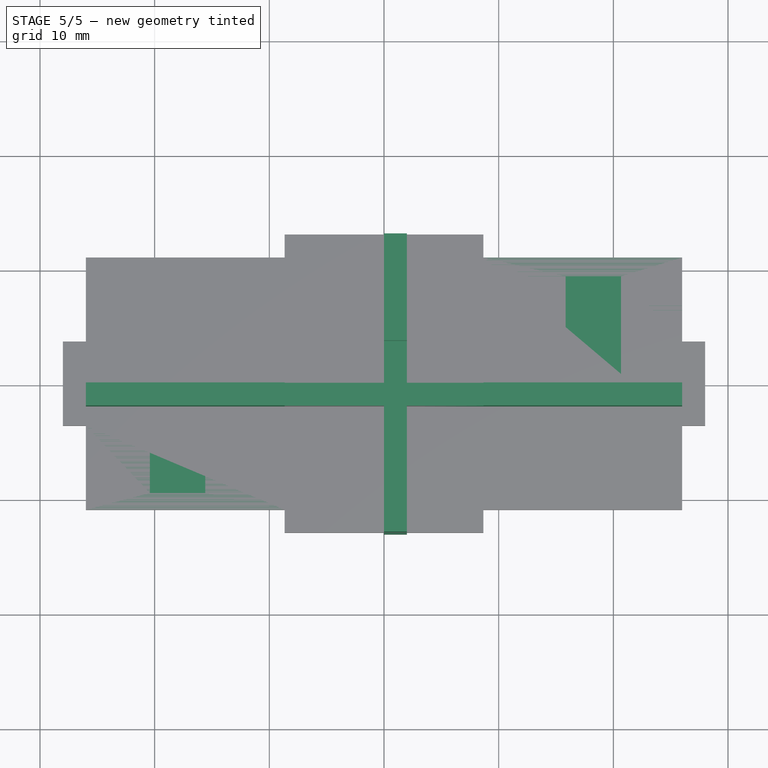
[diagram: stage 5 of 5 — top view after this stage's code; geometry added in this stage tinted green]
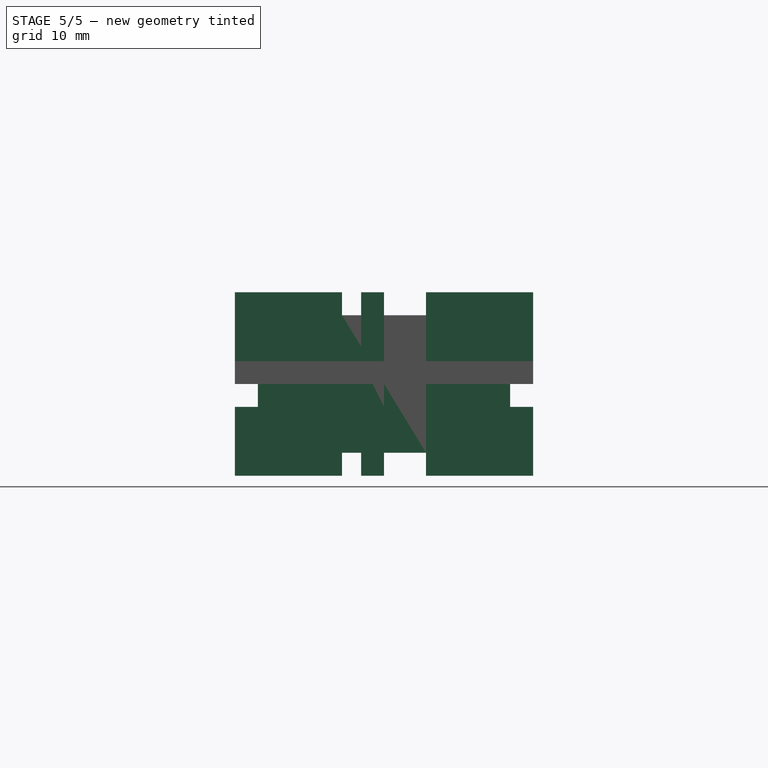
[diagram: stage 5 of 5 — right view after this stage's code; geometry added in this stage tinted green]
FEATURE [Spreadsheet::Sheet] Spreadsheet  label="p"
  cells = A1=inner width; B1(iw)==22mm; A2=inner length; B2(il)==52mm; A3=inner hight; B3(ih)==12mm; A4=wall thickness; B4(wt)==2mm
FEATURE [Part::Feature] Part__Feature  label="SOLID"
  shape: bbox 1.6 x 0.8 x 0.8 mm, 14 faces (baked)
FEATURE [App::Part] R_0603
  Group = -> [Part__Feature]
  Origin = -> Origin
  Placement = pos=(154.3,-115.8,-0.05) rot=(0,1,0;3.14159rad)
FEATURE [Part::Feature] Part__Feature001  label="SOLID001"
  shape: bbox 1.6 x 0.8 x 0.8 mm, 14 faces (baked)
FEATURE [App::Part] R_0603001  label="R_0604"
  Group = -> [Part__Feature001]
  Origin = -> Origin001
  Placement = pos=(154.3,-113.8,-0.05) rot=(0,1,0;3.14159rad)
FEATURE [Part::Feature] Part__Feature002  label="SOLID002"
  shape: bbox 7 x 5 x 1.8 mm, 10 faces (baked)
FEATURE [App::Part] CB3LV_3I_8M192000  label="CB3LV-3I-8M192000"
  Group = -> [Part__Feature002]
  Origin = -> Origin002
  Placement = pos=(173.7,-106.9,-0.05) rot=(0,1,0;3.14159rad)
FEATURE [Part::Feature] Part__Feature003  label="SOLID003"
  shape: bbox 4.064 x 2.54 x 0.635 mm, 6 faces (baked)
FEATURE [Part::Feature] Part__Feature004  label="SOLID004"
  shape: bbox 0.508 x 2.54 x 0.635 mm, 6 faces (baked)
FEATURE [Part::Feature] Part__Feature005  label="SOLID005"
  shape: bbox 0.508 x 2.54 x 0.635 mm, 6 faces (baked)
FEATURE [App::Part] R_2010
  Group = -> [Part__Feature003,Part__Feature004,Part__Feature005]
  Origin = -> Origin003
  Placement = pos=(147.75,-116.5,1.65) rot=(0,0,1;1.5708rad)
FEATURE [Part::Feature] Part__Feature006  label="SOLID006"
  shape: bbox 5.08 x 4.83 x 2.54 mm, 26 faces (baked)
FEATURE [Part::Feature] Part__Feature007  label="COMPOUND"
  shape: bbox 3.18 x 2.735 x 9.65 mm, 20 faces, 2 solids (baked)
FEATURE [Part::Feature] Part__Feature008  label="COMPOUND001"
  shape: bbox 3.18 x 2.735 x 9.65 mm, 20 faces, 2 solids (baked)
FEATURE [App::Part] header_smd_2_54_2x2
  Group = -> [Part__Feature006,Part__Feature007,Part__Feature008]
  Origin = -> Origin004
  Placement = pos=(140,-117,1.65) rot=(0,0,-1;1.5708rad)
FEATURE [Part::Feature] Part__Feature009  label="SOLID007"
  shape: bbox 2 x 2 x 0.8 mm, 8 faces (baked)
FEATURE [App::Part] INA381_WSON  label="INA381-WSON"
  Group = -> [Part__Feature009]
  Origin = -> Origin005
  Placement = pos=(151.75,-117.4,1.65) rot=(0,0,1;0rad)
FEATURE [Part::Feature] Part__Feature010  label="SOLID008"
  shape: bbox 2 x 2 x 0.8 mm, 8 faces (baked)
FEATURE [App::Part] INA381_WSON001  label="INA381-WSON001"
  Group = -> [Part__Feature010]
  Origin = -> Origin006
  Placement = pos=(151.75,-113.5,1.65) rot=(0,0,1;0rad)
FEATURE [Part::Feature] Part__Feature011  label="SOLID009"
  shape: bbox 1 x 3.2 x 0.55 mm, 6 faces (baked)
FEATURE [Part::Feature] Part__Feature012  label="SOLID010"
  shape: bbox 0.3 x 3.2 x 0.55 mm, 6 faces (baked)
FEATURE [Part::Feature] Part__Feature013  label="SOLID011"
  shape: bbox 0.3 x 3.2 x 0.55 mm, 6 faces (baked)
FEATURE [App::Part] R_0612
  Group = -> [Part__Feature011,Part__Feature012,Part__Feature013]
  Origin = -> Origin007
  Placement = pos=(149,-110,1.65) rot=(0,0,1;1.5708rad)
FEATURE [Part::Feature] Part__Feature014  label="SOLID012"
  shape: bbox 5.08 x 4.83 x 2.54 mm, 26 faces (baked)
FEATURE [Part::Feature] Part__Feature015  label="COMPOUND002"
  shape: bbox 3.18 x 2.735 x 9.65 mm, 20 faces, 2 solids (baked)
FEATURE [Part::Feature] Part__Feature016  label="COMPOUND003"
  shape: bbox 3.18 x 2.735 x 9.65 mm, 20 faces, 2 solids (baked)
FEATURE [App::Part] header_smd_2_54_2x2001  label="header_smd_2_54_2x003"
  Group = -> [Part__Feature014,Part__Feature015,Part__Feature016]
  Origin = -> Origin008
  Placement = pos=(140,-110,1.65) rot=(0,0,-1;1.5708rad)
FEATURE [Part::Feature] Part__Feature017  label="COMPOUND004"
  shape: bbox 10.8 x 2.735 x 9.65 mm, 50 faces, 5 solids (baked)
FEATURE [Part::Feature] Part__Feature018  label="COMPOUND005"
  shape: bbox 10.8 x 2.735 x 9.65 mm, 50 faces, 5 solids (baked)
FEATURE [Part::Feature] Part__Feature019  label="SOLID013"
  shape: bbox 12.7 x 4.83 x 2.54 mm, 26 faces (baked)
FEATURE [App::Part] header_smd_2_54_2x5
  Group = -> [Part__Feature017,Part__Feature018,Part__Feature019]
  Origin = -> Origin009
  Placement = pos=(176.25,-107,1.65) rot=(0,0,-1;1.5708rad)
FEATURE [Part::Feature] Part__Feature020  label="SOLID014"
  shape: bbox 1.6 x 0.8 x 0.8 mm, 14 faces (baked)
FEATURE [App::Part] C_0603
  Group = -> [Part__Feature020]
  Origin = -> Origin010
  Placement = pos=(178.8,-104.5,-0.05) rot=(0,1,0;3.14159rad)
FEATURE [Part::Feature] Part__Feature021  label="SOLID015"
  shape: bbox 0.5 x 0.55 x 0.9 mm, 10 faces (baked)
FEATURE [Part::Feature] Part__Feature022  label="SOLID016"
  shape: bbox 3.1 x 1.7 x 1.3 mm, 14 faces (baked)
FEATURE [Part::Feature] Part__Feature023  label="SOLID017"
  shape: bbox 0.5 x 0.55 x 0.9 mm, 10 faces (baked)
FEATURE [Part::Feature] Part__Feature024  label="SOLID018"
  shape: bbox 0.5 x 0.55 x 0.9 mm, 10 faces (baked)
FEATURE [Part::Feature] Part__Feature025  label="SOLID019"
  shape: bbox 0.5 x 0.55 x 0.9 mm, 10 faces (baked)
FEATURE [Part::Feature] Part__Feature026  label="SOLID020"
  shape: bbox 0.5 x 0.55 x 0.9 mm, 10 faces (baked)
FEATURE [App::Part] ZXCT1110W5_7  label="ZXCT1110W5-7"
  Group = -> [Part__Feature021,Part__Feature022,Part__Feature023,Part__Feature024,Part__Feature025,Part__Feature026]
  Origin = -> Origin011
  Placement = pos=(147.25,-105,1.65) rot=(0,0,1;0rad)
FEATURE [Part::Feature] Part__Feature027  label="SOLID021"
  shape: bbox 0.5 x 0.55 x 0.9 mm, 10 faces (baked)
FEATURE [Part::Feature] Part__Feature028  label="SOLID022"
  shape: bbox 3.1 x 1.7 x 1.3 mm, 14 faces (baked)
FEATURE [Part::Feature] Part__Feature029  label="SOLID023"
  shape: bbox 0.5 x 0.55 x 0.9 mm, 10 faces (baked)
FEATURE [Part::Feature] Part__Feature030  label="SOLID024"
  shape: bbox 0.5 x 0.55 x 0.9 mm, 10 faces (baked)
FEATURE [Part::Feature] Part__Feature031  label="SOLID025"
  shape: bbox 0.5 x 0.55 x 0.9 mm, 10 faces (baked)
FEATURE [Part::Feature] Part__Feature032  label="SOLID026"
  shape: bbox 0.5 x 0.55 x 0.9 mm, 10 faces (baked)
FEATURE [App::Part] ZXCT1110W5_7001  label="ZXCT1110W5-008"
  Group = -> [Part__Feature027,Part__Feature028,Part__Feature029,Part__Feature030,Part__Feature031,Part__Feature032]
  Origin = -> Origin012
  Placement = pos=(151.75,-105,1.65) rot=(0,0,1;0rad)
FEATURE [Part::Feature] Part__Feature033  label="SOLID027"
  shape: bbox 0.5 x 0.55 x 0.9 mm, 10 faces (baked)
FEATURE [Part::Feature] Part__Feature034  label="SOLID028"
  shape: bbox 3.1 x 1.7 x 1.3 mm, 14 faces (baked)
FEATURE [Part::Feature] Part__Feature035  label="SOLID029"
  shape: bbox 0.5 x 0.55 x 0.9 mm, 10 faces (baked)
FEATURE [Part::Feature] Part__Feature036  label="SOLID030"
  shape: bbox 0.5 x 0.55 x 0.9 mm, 10 faces (baked)
FEATURE [Part::Feature] Part__Feature037  label="SOLID031"
  shape: bbox 0.5 x 0.55 x 0.9 mm, 10 faces (baked)
FEATURE [Part::Feature] Part__Feature038  label="SOLID032"
  shape: bbox 0.5 x 0.55 x 0.9 mm, 10 faces (baked)
FEATURE [App::Part] ZXCT1110W5_7002  label="ZXCT1110W5-009"
  Group = -> [Part__Feature033,Part__Feature034,Part__Feature035,Part__Feature036,Part__Feature037,Part__Feature038]
  Origin = -> Origin013
  Placement = pos=(166.2,-117.08,1.65) rot=(0,0,-1;1.5708rad)
FEATURE [Part::Feature] Part__Feature039  label="SOLID033"
  shape: bbox 1.6 x 0.8 x 0.8 mm, 14 faces (baked)
FEATURE [App::Part] R_0603002  label="R_2011"
  Group = -> [Part__Feature039]
  Origin = -> Origin014
  Placement = pos=(156.5,-114.575,1.65) rot=(0,0,1;3.14159rad)
FEATURE [Part::Feature] Part__Feature040  label="SOLID034"
  shape: bbox 1.6 x 0.8 x 0.8 mm, 14 faces (baked)
FEATURE [App::Part] R_0603003  label="R_2012"
  Group = -> [Part__Feature040]
  Origin = -> Origin015
  Placement = pos=(156.5,-116.125,1.65) rot=(0,0,1;3.14159rad)
FEATURE [Part::Feature] Part__Feature041  label="SOLID035"
  shape: bbox 1.6 x 0.8 x 0.8 mm, 14 faces (baked)
FEATURE [App::Part] R_0603004  label="R_2013"
  Group = -> [Part__Feature041]
  Origin = -> Origin016
  Placement = pos=(156.5,-112.575,1.65) rot=(0,0,1;3.14159rad)
FEATURE [Part::Feature] Part__Feature042  label="SOLID036"
  shape: bbox 1.6 x 0.8 x 0.8 mm, 14 faces (baked)
FEATURE [App::Part] R_0603005  label="R_2014"
  Group = -> [Part__Feature042]
  Origin = -> Origin017
  Placement = pos=(156.5,-111.025,1.65) rot=(0,0,1;3.14159rad)
FEATURE [Part::Feature] Part__Feature043  label="SOLID037"
  shape: bbox 1.6 x 0.8 x 0.8 mm, 14 faces (baked)
FEATURE [App::Part] R_0603006  label="R_2015"
  Group = -> [Part__Feature043]
  Origin = -> Origin018
  Placement = pos=(156.5,-107.45,1.65) rot=(0,0,1;3.14159rad)
FEATURE [Part::Feature] Part__Feature044  label="SOLID038"
  shape: bbox 1.6 x 0.8 x 0.8 mm, 14 faces (baked)
FEATURE [App::Part] R_0603007  label="R_2016"
  Group = -> [Part__Feature044]
  Origin = -> Origin019
  Placement = pos=(156.5,-109,1.65) rot=(0,0,1;3.14159rad)
FEATURE [Part::Feature] Part__Feature045  label="SOLID039"
  shape: bbox 1.6 x 0.8 x 0.8 mm, 14 faces (baked)
FEATURE [App::Part] R_0603008  label="R_2017"
  Group = -> [Part__Feature045]
  Origin = -> Origin020
  Placement = pos=(156.5,-105.475,1.65) rot=(0,0,1;3.14159rad)
FEATURE [Part::Feature] Part__Feature046  label="SOLID040"
  shape: bbox 1.6 x 0.8 x 0.8 mm, 14 faces (baked)
FEATURE [App::Part] R_0603009  label="R_2018"
  Group = -> [Part__Feature046]
  Origin = -> Origin021
  Placement = pos=(156.5,-103.9,1.65) rot=(0,0,1;3.14159rad)
FEATURE [Part::Feature] Part__Feature047  label="SOLID041"
  shape: bbox 1.6 x 0.8 x 0.8 mm, 14 faces (baked)
FEATURE [App::Part] R_0603010  label="R_2019"
  Group = -> [Part__Feature047]
  Origin = -> Origin022
  Placement = pos=(147,-102.25,1.65) rot=(0,0,1;0rad)
FEATURE [Part::Feature] Part__Feature048  label="SOLID042"
  shape: bbox 1.6 x 0.8 x 0.8 mm, 14 faces (baked)
FEATURE [App::Part] R_0603011  label="R_2020"
  Group = -> [Part__Feature048]
  Origin = -> Origin023
  Placement = pos=(151.5,-102.25,1.65) rot=(0,0,1;0rad)
FEATURE [Part::Feature] Part__Feature049  label="SOLID043"
  shape: bbox 1.6 x 0.8 x 0.8 mm, 14 faces (baked)
FEATURE [App::Part] C_0603001  label="C_0604"
  Group = -> [Part__Feature049]
  Origin = -> Origin024
  Placement = pos=(163.25,-117,1.65) rot=(0,0,1;1.5708rad)
FEATURE [Part::Feature] Part__Feature050  label="SOLID044"
  shape: bbox 1.6 x 0.8 x 0.8 mm, 14 faces (baked)
FEATURE [App::Part] C_0603002  label="C_0605"
  Group = -> [Part__Feature050]
  Origin = -> Origin025
  Placement = pos=(169,-117,1.65) rot=(0,0,-1;1.5708rad)
FEATURE [Part::Feature] Part__Feature051  label="SOLID045"
  shape: bbox 1.6 x 0.8 x 0.8 mm, 14 faces (baked)
FEATURE [App::Part] C_0603003  label="C_0606"
  Group = -> [Part__Feature051]
  Origin = -> Origin026
  Placement = pos=(167.6,-104.1,-0.05) rot=(-0.707107,0.707107,0;3.14159rad)
FEATURE [Part::Feature] Part__Feature052  label="SOLID046"
  shape: bbox 1.6 x 0.8 x 0.8 mm, 14 faces (baked)
FEATURE [App::Part] C_0603004  label="C_0607"
  Group = -> [Part__Feature052]
  Origin = -> Origin027
  Placement = pos=(167.8,-102.85,1.65) rot=(0,0,1;3.14159rad)
FEATURE [Part::Feature] Part__Feature053  label="SOLID047"
  shape: bbox 1.6 x 0.8 x 0.8 mm, 14 faces (baked)
FEATURE [App::Part] C_0603005  label="C_0608"
  Group = -> [Part__Feature053]
  Origin = -> Origin028
  Placement = pos=(162.1,-102.85,1.65) rot=(0,0,1;3.14159rad)
FEATURE [Part::Feature] Part__Feature054  label="SOLID048"
  shape: bbox 1.6 x 0.8 x 0.8 mm, 14 faces (baked)
FEATURE [App::Part] C_0603006  label="C_0609"
  Group = -> [Part__Feature054]
  Origin = -> Origin029
  Placement = pos=(159,-115.35,1.65) rot=(0,0,1;1.5708rad)
FEATURE [Part::Feature] Part__Feature055  label="SOLID049"
  shape: bbox 1.6 x 0.8 x 0.8 mm, 14 faces (baked)
FEATURE [App::Part] C_0603007  label="C_0610"
  Group = -> [Part__Feature055]
  Origin = -> Origin030
  Placement = pos=(159,-111.8,1.65) rot=(0,0,-1;1.5708rad)
FEATURE [Part::Feature] Part__Feature056  label="SOLID050"
  shape: bbox 1.6 x 0.8 x 0.8 mm, 14 faces (baked)
FEATURE [App::Part] C_0603008  label="C_0611"
  Group = -> [Part__Feature056]
  Origin = -> Origin031
  Placement = pos=(159,-108.25,1.65) rot=(0,0,1;1.5708rad)
FEATURE [Part::Feature] Part__Feature057  label="SOLID051"
  shape: bbox 1.6 x 0.8 x 0.8 mm, 14 faces (baked)
FEATURE [App::Part] C_0603009  label="C_0612"
  Group = -> [Part__Feature057]
  Origin = -> Origin032
  Placement = pos=(159,-104.7,1.65) rot=(0,0,-1;1.5708rad)
FEATURE [Part::Feature] Part__Feature058  label="COMPOUND006"
  shape: bbox 0.85 x 6.1 x 0.55 mm, 120 faces, 10 solids (baked)
FEATURE [Part::Feature] Part__Feature059  label="COMPOUND007"
  shape: bbox 0.85 x 6.1 x 0.55 mm, 120 faces, 10 solids (baked)
FEATURE [Part::Feature] Part__Feature060  label="SOLID052"
  shape: bbox 4.4 x 6.5 x 1.1 mm, 16 faces (baked)
FEATURE [App::Part] ADS131M04
  Group = -> [Part__Feature058,Part__Feature059,Part__Feature060]
  Origin = -> Origin033
  Placement = pos=(165,-107.25,1.65) rot=(0,0,1;0rad)
FEATURE [Part::Feature] Part__Feature061  label="COMPOUND008"
  shape: bbox 50 x 20 x 1.6 mm, 36 faces (baked)
FEATURE [App::Part] Open_CASCADE_STEP_translator_7_4_1  label="Open CASCADE STEP translator 7.4 1"
  Group = -> [R_0603,R_0603001,CB3LV_3I_8M192000,R_2010,header_smd_2_54_2x2,INA381_WSON,INA381_WSON001,R_0612,header_smd_2_54_2x2001,header_smd_2_54_2x5,C_0603,ZXCT1110W5_7,ZXCT1110W5_7001,ZXCT1110W5_7002,R_0603002,R_0603003,R_0603004,R_0603005,R_0603006,R_0603007,R_0603008,R_0603009,R_0603010,R_0603011,C_0603001,C_0603002,C_0603003,C_0603004,C_0603005,C_0603006,C_0603007,C_0603008,C_0603009,ADS131M04,+1 more]
  Origin = -> Origin034
  Placement = pos=(-184,99,6) rot=(0,0,1;0rad)
FEATURE [Sketcher::SketchObject] Sketch  label="top_bottom"
  MapMode = 5
  Support = -> [XY_Plane036]
  expr: Constraints[47] = <<p>>.il / 3
  expr: Constraints[51] = <<p>>.iw / 3
  expr: Constraints[46] = <<p>>.il / 3
  expr: Constraints[45] = <<p>>.il / 3
  expr: Constraints[49] = <<p>>.wt
  expr: Constraints[56] = <<p>>.il / 2
  expr: Constraints[44] = <<p>>.wt
  expr: Constraints[52] = <<p>>.iw / 3
  expr: Constraints[50] = <<p>>.iw / 3
  expr: Constraints[43] = <<p>>.wt
  expr: Constraints[42] = <<p>>.il / 3
  expr: Constraints[55] = <<p>>.iw / 2
  expr: Constraints[41] = <<p>>.wt
  expr: Constraints[53] = <<p>>.wt
  expr: Constraints[54] = <<p>>.wt
  expr: Constraints[40] = <<p>>.il / 3
  expr: Constraints[39] = <<p>>.il / 3
  sketch-geometry (20):
    g0: LineSegment StartX=-8.66667 StartY=13 StartZ=0 EndX=8.66667 EndY=13 EndZ=0
    g1: LineSegment StartX=8.66667 StartY=13 StartZ=0 EndX=8.66667 EndY=11 EndZ=0
    g2: LineSegment StartX=8.66667 StartY=11 StartZ=0 EndX=26 EndY=11 EndZ=0
    g3: LineSegment StartX=26 StartY=11 StartZ=0 EndX=26 EndY=3.66667 EndZ=0
    g4: LineSegment StartX=26 StartY=3.66667 StartZ=0 EndX=28 EndY=3.66667 EndZ=0
    g5: LineSegment StartX=28 StartY=3.66667 StartZ=0 EndX=28 EndY=-3.66667 EndZ=0
    g6: LineSegment StartX=28 StartY=-3.66667 StartZ=0 EndX=26 EndY=-3.66667 EndZ=0
    g7: LineSegment StartX=26 StartY=-3.66667 StartZ=0 EndX=26 EndY=-11 EndZ=0
    g8: LineSegment StartX=26 StartY=-11 StartZ=0 EndX=8.66667 EndY=-11 EndZ=0
    g9: LineSegment StartX=8.66667 StartY=-11 StartZ=0 EndX=8.66667 EndY=-13 EndZ=0
    g10: LineSegment StartX=8.66667 StartY=-13 StartZ=0 EndX=-8.66667 EndY=-13 EndZ=0
    g11: LineSegment StartX=-8.66667 StartY=-13 StartZ=0 EndX=-8.66667 EndY=-11 EndZ=0
    g12: LineSegment StartX=-8.66667 StartY=-11 StartZ=0 EndX=-26 EndY=-11 EndZ=0
    g13: LineSegment StartX=-26 StartY=-11 StartZ=0 EndX=-26 EndY=-3.66667 EndZ=0
    g14: LineSegment StartX=-26 StartY=-3.66667 StartZ=0 EndX=-28 EndY=-3.66667 EndZ=0
    g15: LineSegment StartX=-28 StartY=-3.66667 StartZ=0 EndX=-28 EndY=3.66667 EndZ=0
    g16: LineSegment StartX=-28 StartY=3.66667 StartZ=0 EndX=-26 EndY=3.66667 EndZ=0
    g17: LineSegment StartX=-26 StartY=3.66667 StartZ=0 EndX=-26 EndY=11 EndZ=0
    g18: LineSegment StartX=-26 StartY=11 StartZ=0 EndX=-8.66667 EndY=11 EndZ=0
    g19: LineSegment StartX=-8.66667 StartY=11 StartZ=0 EndX=-8.66667 EndY=13 EndZ=0
  constraints (60):
    c: Horizontal(g0)
    c: Coincident(g0,g1)
    c: Vertical(g1)
    c: Coincident(g1,g2)
    c: Horizontal(g2)
    c: Coincident(g2,g3)
    c: Vertical(g3)
    c: Coincident(g3,g4)
    c: Horizontal(g4)
    c: Coincident(g4,g5)
    c: Vertical(g5)
    c: Coincident(g5,g6)
    c: Horizontal(g6)
    c: Coincident(g6,g7)
    c: Vertical(g7)
    c: Coincident(g7,g8)
    c: Horizontal(g8)
    c: Coincident(g8,g9)
    c: Vertical(g9)
    c: Coincident(g9,g10)
    c: Horizontal(g10)
    c: Coincident(g10,g11)
    c: Vertical(g11)
    c: Coincident(g11,g12)
    c: Horizontal(g12)
    c: Coincident(g12,g13)
    c: Vertical(g13)
    c: Coincident(g13,g14)
    c: Horizontal(g14)
    c: Coincident(g14,g15)
    c: Vertical(g15)
    c: Coincident(g15,g16)
    c: Horizontal(g16)
    c: Coincident(g16,g17)
    c: Vertical(g17)
    c: Coincident(g17,g18)
    c: Horizontal(g18)
    c: Coincident(g18,g19)
    c: Coincident(g19,g0)
    c: DistanceX(g0,g0) = 17.3333
    c: DistanceX(g17,g18) = 17.3333
    c: DistanceX(g15,g16) = 2
    c: DistanceX(g1,g2) = 17.3333
    c: DistanceX(g3,g4) = 2
    c: DistanceX(g14,g13) = 2
    c: DistanceX(g12,g11) = 17.3333
    c: DistanceX(g10,g9) = 17.3333
    c: DistanceX(g8,g7) = 17.3333
    c: Vertical(g19)
    c: DistanceY(g18,g0) = 2
    c: DistanceY(g16,g17) = 7.33333
    c: DistanceY(g14,g15) = 7.33333
    c: DistanceY(g12,g13) = 7.33333
    c: DistanceY(g10,g11) = 2
    c: DistanceY(g9,g8) = 2
    c: DistanceY(g-1,g18) = 11
    c: DistanceX(g17,g-1) = 26
    c: Horizontal(g16,g3)
    c: Horizontal(g6,g13)
    c: Horizontal(g18,g1)
FEATURE [PartDesign::Pad] Pad
  AllowMultiFace = false
  Direction = (1,1,1)
  Length = 2
  Length2 = 100
  Profile = -> Sketch
  Type = 0
  expr: Length = <<p>>.wt
FEATURE [Sketcher::SketchObject] Sketch002  label="front_back"
  Placement = pos=(0,0,0) rot=(1,0,0;1.5708rad)
  expr: Constraints[40] = <<p>>.il / 3
  expr: Constraints[41] = <<p>>.il / 3
  expr: Constraints[42] = <<p>>.il / 3
  expr: Constraints[47] = <<p>>.wt
  expr: Constraints[59] = <<p>>.il / 2
  expr: Constraints[48] = <<p>>.wt
  expr: Constraints[52] = <<p>>.ih / 3
  expr: Constraints[49] = <<p>>.wt
  expr: Constraints[58] = <<p>>.ih / 2
  expr: Constraints[50] = <<p>>.wt
  expr: Constraints[51] = <<p>>.ih / 3 + <<p>>.wt
  expr: Constraints[53] = <<p>>.ih / 3 + <<p>>.wt
  sketch-geometry (20):
    g0: LineSegment StartX=-26 StartY=8 StartZ=0 EndX=-8.66667 EndY=8 EndZ=0
    g1: LineSegment StartX=-8.66667 StartY=8 StartZ=0 EndX=-8.66667 EndY=6 EndZ=0
    g2: LineSegment StartX=-8.66667 StartY=6 StartZ=0 EndX=8.66667 EndY=6 EndZ=0
    g3: LineSegment StartX=8.66667 StartY=6 StartZ=0 EndX=8.66667 EndY=8 EndZ=0
    g4: LineSegment StartX=8.66667 StartY=8 StartZ=0 EndX=26 EndY=8 EndZ=0
    g5: LineSegment StartX=26 StartY=8 StartZ=0 EndX=26 EndY=2 EndZ=0
    g6: LineSegment StartX=26 StartY=2 StartZ=0 EndX=28 EndY=2 EndZ=0
    g7: LineSegment StartX=28 StartY=2 StartZ=0 EndX=28 EndY=-2 EndZ=0
    g8: LineSegment StartX=28 StartY=-2 StartZ=0 EndX=26 EndY=-2 EndZ=0
    g9: LineSegment StartX=26 StartY=-2 StartZ=0 EndX=26 EndY=-8 EndZ=0
    g10: LineSegment StartX=26 StartY=-8 StartZ=0 EndX=8.66667 EndY=-8 EndZ=0
    g11: LineSegment StartX=8.66667 StartY=-8 StartZ=0 EndX=8.66667 EndY=-6 EndZ=0
    g12: LineSegment StartX=8.66667 StartY=-6 StartZ=0 EndX=-8.66667 EndY=-6 EndZ=0
    g13: LineSegment StartX=-8.66667 StartY=-6 StartZ=0 EndX=-8.66667 EndY=-8 EndZ=0
    g14: LineSegment StartX=-8.66667 StartY=-8 StartZ=0 EndX=-26 EndY=-8 EndZ=0
    g15: LineSegment StartX=-26 StartY=-8 StartZ=0 EndX=-26 EndY=-2 EndZ=0
    g16: LineSegment StartX=-26 StartY=-2 StartZ=0 EndX=-28 EndY=-2 EndZ=0
    g17: LineSegment StartX=-28 StartY=-2 StartZ=0 EndX=-28 EndY=2 EndZ=0
    g18: LineSegment StartX=-28 StartY=2 StartZ=0 EndX=-26 EndY=2 EndZ=0
    g19: LineSegment StartX=-26 StartY=2 StartZ=0 EndX=-26 EndY=8 EndZ=0
  constraints (60):
    c: Horizontal(g0)
    c: Coincident(g0,g1)
    c: Vertical(g1)
    c: Coincident(g1,g2)
    c: Horizontal(g2)
    c: Coincident(g2,g3)
    c: Vertical(g3)
    c: Coincident(g3,g4)
    c: Horizontal(g4)
    c: Coincident(g4,g5)
    c: Vertical(g5)
    c: Coincident(g5,g6)
    c: Horizontal(g6)
    c: Coincident(g6,g7)
    c: Vertical(g7)
    c: Coincident(g7,g8)
    c: Horizontal(g8)
    c: Coincident(g8,g9)
    c: Vertical(g9)
    c: Coincident(g9,g10)
    c: Horizontal(g10)
    c: Coincident(g10,g11)
    c: Vertical(g11)
    c: Coincident(g11,g12)
    c: Horizontal(g12)
    c: Coincident(g12,g13)
    c: Vertical(g13)
    c: Coincident(g13,g14)
    c: Horizontal(g14)
    c: Coincident(g14,g15)
    c: Vertical(g15)
    c: Coincident(g15,g16)
    c: Horizontal(g16)
    c: Coincident(g16,g17)
    c: Vertical(g17)
    c: Coincident(g17,g18)
    c: Horizontal(g18)
    c: Coincident(g18,g19)
    c: Coincident(g19,g0)
    c: Vertical(g19)
    c: DistanceX(g0,g0) = 17.3333
    c: DistanceX(g2,g2) = 17.3333
    c: DistanceX(g4,g4) = 17.3333
    c: Vertical(g18,g15)
    c: Vertical(g12,g1)
    c: Vertical(g11,g2)
    c: Vertical(g8,g5)
    c: DistanceX(g6,g6) = 2
    c: DistanceX(g18,g18) = 2
    c: DistanceY(g3,g3) = 2
    c: DistanceY(g11,g11) = 2
    c: DistanceY(g5,g5) = 6
    c: DistanceY(g7,g7) = 4
    c: DistanceY(g9,g9) = 6
    c: Horizontal(g0,g3)
    c: Horizontal(g15,g8)
    c: Horizontal(g18,g5)
    c: Horizontal(g10,g13)
    c: DistanceY(g-1,g1) = 6
    c: DistanceX(g18,g-1) = 26
FEATURE [PartDesign::Pad] Pad002
  Direction = (1,1,1)
  Length = 2
  Length2 = 100
  Placement = pos=(0,0,0) rot=(1,0,0;1.5708rad)
  Profile = -> Sketch002
  Type = 0
  expr: Length = <<p>>.wt
FEATURE [PartDesign::Body] Body002  label="front"
  Group = -> [Sketch002,Pad002]
  Origin = -> Origin037
  Placement = pos=(-26,-22,8) rot=(0,0,1;0rad)
  Tip = -> Pad002
  expr: .Placement.Base.x = -<<p>>.il / 2
  expr: .Placement.Base.y = -<<p>>.iw
  expr: .Placement.Base.z = <<p>>.ih / 2 + <<p>>.wt
FEATURE [Sketcher::SketchObject] Sketch003  label="front_back001"
  Placement = pos=(0,0,0) rot=(1,0,0;1.5708rad)
  expr: Constraints[53] = <<p>>.ih / 3 + <<p>>.wt
  expr: Constraints[51] = <<p>>.ih / 3 + <<p>>.wt
  expr: Constraints[50] = <<p>>.wt
  expr: Constraints[58] = <<p>>.ih / 2
  expr: Constraints[49] = <<p>>.wt
  expr: Constraints[52] = <<p>>.ih / 3
  expr: Constraints[48] = <<p>>.wt
  expr: Constraints[59] = <<p>>.il / 2
  expr: Constraints[47] = <<p>>.wt
  expr: Constraints[42] = <<p>>.il / 3
  expr: Constraints[41] = <<p>>.il / 3
  expr: Constraints[40] = <<p>>.il / 3
  sketch-geometry (20):
    g0: LineSegment StartX=-26 StartY=8 StartZ=0 EndX=-8.66667 EndY=8 EndZ=0
    g1: LineSegment StartX=-8.66667 StartY=8 StartZ=0 EndX=-8.66667 EndY=6 EndZ=0
    g2: LineSegment StartX=-8.66667 StartY=6 StartZ=0 EndX=8.66667 EndY=6 EndZ=0
    g3: LineSegment StartX=8.66667 StartY=6 StartZ=0 EndX=8.66667 EndY=8 EndZ=0
    g4: LineSegment StartX=8.66667 StartY=8 StartZ=0 EndX=26 EndY=8 EndZ=0
    g5: LineSegment StartX=26 StartY=8 StartZ=0 EndX=26 EndY=2 EndZ=0
    g6: LineSegment StartX=26 StartY=2 StartZ=0 EndX=28 EndY=2 EndZ=0
    g7: LineSegment StartX=28 StartY=2 StartZ=0 EndX=28 EndY=-2 EndZ=0
    g8: LineSegment StartX=28 StartY=-2 StartZ=0 EndX=26 EndY=-2 EndZ=0
    g9: LineSegment StartX=26 StartY=-2 StartZ=0 EndX=26 EndY=-8 EndZ=0
    g10: LineSegment StartX=26 StartY=-8 StartZ=0 EndX=8.66667 EndY=-8 EndZ=0
    g11: LineSegment StartX=8.66667 StartY=-8 StartZ=0 EndX=8.66667 EndY=-6 EndZ=0
    g12: LineSegment StartX=8.66667 StartY=-6 StartZ=0 EndX=-8.66667 EndY=-6 EndZ=0
    g13: LineSegment StartX=-8.66667 StartY=-6 StartZ=0 EndX=-8.66667 EndY=-8 EndZ=0
    g14: LineSegment StartX=-8.66667 StartY=-8 StartZ=0 EndX=-26 EndY=-8 EndZ=0
    g15: LineSegment StartX=-26 StartY=-8 StartZ=0 EndX=-26 EndY=-2 EndZ=0
    g16: LineSegment StartX=-26 StartY=-2 StartZ=0 EndX=-28 EndY=-2 EndZ=0
    g17: LineSegment StartX=-28 StartY=-2 StartZ=0 EndX=-28 EndY=2 EndZ=0
    g18: LineSegment StartX=-28 StartY=2 StartZ=0 EndX=-26 EndY=2 EndZ=0
    g19: LineSegment StartX=-26 StartY=2 StartZ=0 EndX=-26 EndY=8 EndZ=0
  constraints (60):
    c: Horizontal(g0)
    c: Coincident(g0,g1)
    c: Vertical(g1)
    c: Coincident(g1,g2)
    c: Horizontal(g2)
    c: Coincident(g2,g3)
    c: Vertical(g3)
    c: Coincident(g3,g4)
    c: Horizontal(g4)
    c: Coincident(g4,g5)
    c: Vertical(g5)
    c: Coincident(g5,g6)
    c: Horizontal(g6)
    c: Coincident(g6,g7)
    c: Vertical(g7)
    c: Coincident(g7,g8)
    c: Horizontal(g8)
    c: Coincident(g8,g9)
    c: Vertical(g9)
    c: Coincident(g9,g10)
    c: Horizontal(g10)
    c: Coincident(g10,g11)
    c: Vertical(g11)
    c: Coincident(g11,g12)
    c: Horizontal(g12)
    c: Coincident(g12,g13)
    c: Vertical(g13)
    c: Coincident(g13,g14)
    c: Horizontal(g14)
    c: Coincident(g14,g15)
    c: Vertical(g15)
    c: Coincident(g15,g16)
    c: Horizontal(g16)
    c: Coincident(g16,g17)
    c: Vertical(g17)
    c: Coincident(g17,g18)
    c: Horizontal(g18)
    c: Coincident(g18,g19)
    c: Coincident(g19,g0)
    c: Vertical(g19)
    c: DistanceX(g0,g0) = 17.3333
    c: DistanceX(g2,g2) = 17.3333
    c: DistanceX(g4,g4) = 17.3333
    c: Vertical(g18,g15)
    c: Vertical(g12,g1)
    c: Vertical(g11,g2)
    c: Vertical(g8,g5)
    c: DistanceX(g6,g6) = 2
    c: DistanceX(g18,g18) = 2
    c: DistanceY(g3,g3) = 2
    c: DistanceY(g11,g11) = 2
    c: DistanceY(g5,g5) = 6
    c: DistanceY(g7,g7) = 4
    c: DistanceY(g9,g9) = 6
    c: Horizontal(g0,g3)
    c: Horizontal(g15,g8)
    c: Horizontal(g18,g5)
    c: Horizontal(g10,g13)
    c: DistanceY(g-1,g1) = 6
    c: DistanceX(g18,g-1) = 26
FEATURE [PartDesign::Pad] Pad003
  Direction = (1,1,1)
  Length = 2
  Length2 = 100
  Placement = pos=(0,0,0) rot=(1,0,0;1.5708rad)
  Profile = -> Sketch003
  Type = 0
  expr: Length = <<p>>.wt
FEATURE [PartDesign::Body] Body003  label="back"
  Group = -> [Pad003]
  Origin = -> Origin038
  Placement = pos=(-26,2,8) rot=(0,0,1;0rad)
  Tip = -> Pad003
  expr: .Placement.Base.x = -<<p>>.il / 2
  expr: .Placement.Base.y = <<p>>.wt
  expr: .Placement.Base.z = <<p>>.ih / 2 + <<p>>.wt
FEATURE [Sketcher::SketchObject] Sketch004
  MapMode = 5
  Placement = pos=(0,0,0) rot=(0.57735,0.57735,0.57735;2.0944rad)
  Support = -> [YZ_Plane039]
  expr: Constraints[55] = <<p>>.ih / 3 + <<p>>.wt
  expr: Constraints[54] = <<p>>.ih / 3
  expr: Constraints[53] = <<p>>.ih / 3 + <<p>>.wt
  expr: Constraints[51] = <<p>>.wt
  expr: Constraints[50] = <<p>>.wt
  expr: Constraints[58] = <<p>>.iw / 6
  expr: Constraints[49] = <<p>>.wt
  expr: Constraints[52] = <<p>>.wt
  expr: Constraints[48] = <<p>>.iw / 3 + <<p>>.wt
  expr: Constraints[59] = <<p>>.ih / 2
  expr: Constraints[47] = <<p>>.iw / 3
  expr: Constraints[46] = <<p>>.iw / 3 + <<p>>.wt
  sketch-geometry (20):
    g0: LineSegment StartX=-13 StartY=8 StartZ=0 EndX=-13 EndY=2 EndZ=0
    g1: LineSegment StartX=-13 StartY=2 StartZ=0 EndX=-11 EndY=2 EndZ=0
    g2: LineSegment StartX=-11 StartY=2 StartZ=0 EndX=-11 EndY=-2 EndZ=0
    g3: LineSegment StartX=-11 StartY=-2 StartZ=0 EndX=-13 EndY=-2 EndZ=0
    g4: LineSegment StartX=-13 StartY=-2 StartZ=0 EndX=-13 EndY=-8 EndZ=0
    g5: LineSegment StartX=-13 StartY=-8 StartZ=0 EndX=-3.66667 EndY=-8 EndZ=0
    g6: LineSegment StartX=-3.66667 StartY=-8 StartZ=0 EndX=-3.66667 EndY=-6 EndZ=0
    g7: LineSegment StartX=-3.66667 StartY=-6 StartZ=0 EndX=3.66667 EndY=-6 EndZ=0
    g8: LineSegment StartX=3.66667 StartY=-6 StartZ=0 EndX=3.66667 EndY=-8 EndZ=0
    g9: LineSegment StartX=3.66667 StartY=-8 StartZ=0 EndX=13 EndY=-8 EndZ=0
    g10: LineSegment StartX=13 StartY=-8 StartZ=0 EndX=13 EndY=-2 EndZ=0
    g11: LineSegment StartX=13 StartY=-2 StartZ=0 EndX=11 EndY=-2 EndZ=0
    g12: LineSegment StartX=11 StartY=-2 StartZ=0 EndX=11 EndY=2 EndZ=0
    g13: LineSegment StartX=11 StartY=2 StartZ=0 EndX=13 EndY=2 EndZ=0
    g14: LineSegment StartX=13 StartY=2 StartZ=0 EndX=13 EndY=8 EndZ=0
    g15: LineSegment StartX=13 StartY=8 StartZ=0 EndX=3.66667 EndY=8 EndZ=0
    g16: LineSegment StartX=3.66667 StartY=8 StartZ=0 EndX=3.66667 EndY=6 EndZ=0
    g17: LineSegment StartX=3.66667 StartY=6 StartZ=0 EndX=-3.66667 EndY=6 EndZ=0
    g18: LineSegment StartX=-3.66667 StartY=6 StartZ=0 EndX=-3.66667 EndY=8 EndZ=0
    g19: LineSegment StartX=-3.66667 StartY=8 StartZ=0 EndX=-13 EndY=8 EndZ=0
  constraints (60):
    c: Vertical(g0)
    c: Coincident(g0,g1)
    c: Horizontal(g1)
    c: Coincident(g1,g2)
    c: Vertical(g2)
    c: Coincident(g2,g3)
    c: Horizontal(g3)
    c: Coincident(g3,g4)
    c: Vertical(g4)
    c: Coincident(g4,g5)
    c: Horizontal(g5)
    c: Coincident(g5,g6)
    c: Vertical(g6)
    c: Coincident(g6,g7)
    c: Horizontal(g7)
    c: Coincident(g7,g8)
    c: Vertical(g8)
    c: Coincident(g8,g9)
    c: Horizontal(g9)
    c: Coincident(g9,g10)
    c: Vertical(g10)
    c: Coincident(g10,g11)
    c: Horizontal(g11)
    c: Coincident(g11,g12)
    c: Vertical(g12)
    c: Coincident(g12,g13)
    c: Horizontal(g13)
    c: Coincident(g13,g14)
    c: Vertical(g14)
    c: Coincident(g14,g15)
    c: Horizontal(g15)
    c: Coincident(g15,g16)
    c: Vertical(g16)
    c: Coincident(g16,g17)
    c: Horizontal(g17)
    c: Coincident(g17,g18)
    c: Vertical(g18)
    c: Coincident(g18,g19)
    c: Coincident(g19,g0)
    c: Horizontal(g19)
    c: Vertical(g17,g6)
    c: Vertical(g16,g7)
    c: Vertical(g10,g13)
    c: Vertical(g3,g0)
    c: Horizontal(g18,g15)
    c: Horizontal(g5,g8)
    c: DistanceX(g19,g19) = 9.33333
    c: DistanceX(g17,g17) = 7.33333
    c: DistanceX(g15,g15) = 9.33333
    c: DistanceX(g13,g13) = 2
    c: DistanceX(g1,g1) = 2
    c: DistanceY(g6,g6) = 2
    c: DistanceY(g18,g18) = 2
    c: DistanceY(g0,g0) = 6
    c: DistanceY(g2,g2) = 4
    c: DistanceY(g4,g4) = 6
    c: Horizontal(g1,g12)
    c: Horizontal(g2,g11)
    c: DistanceX(g-1,g16) = 3.66667
    c: DistanceY(g-1,g16) = 6
FEATURE [PartDesign::Pad] Pad004
  Direction = (1,1,1)
  Length = 2
  Length2 = 100
  Placement = pos=(0,0,0) rot=(0.57735,0.57735,0.57735;2.0944rad)
  Profile = -> Sketch004
  Type = 0
  expr: Length = <<p>>.wt
FEATURE [PartDesign::Body] Body004  label="left"
  Group = -> [Sketch004,Pad004]
  Origin = -> Origin039
  Placement = pos=(-54,-11,8) rot=(0,0,1;0rad)
  Tip = -> Pad004
  expr: .Placement.Base.z = <<p>>.ih / 2 + <<p>>.wt
  expr: .Placement.Base.y = -<<p>>.iw / 2
  expr: .Placement.Base.x = -<<p>>.il - <<p>>.wt
FEATURE [Sketcher::SketchObject] Sketch005
  MapMode = 5
  Placement = pos=(0,0,0) rot=(0.57735,0.57735,0.57735;2.0944rad)
  Support = -> [YZ_Plane040]
  expr: Constraints[46] = <<p>>.iw / 3 + <<p>>.wt
  expr: Constraints[47] = <<p>>.iw / 3
  expr: Constraints[59] = <<p>>.ih / 2
  expr: Constraints[48] = <<p>>.iw / 3 + <<p>>.wt
  expr: Constraints[52] = <<p>>.wt
  expr: Constraints[49] = <<p>>.wt
  expr: Constraints[58] = <<p>>.iw / 6
  expr: Constraints[50] = <<p>>.wt
  expr: Constraints[51] = <<p>>.wt
  expr: Constraints[53] = <<p>>.ih / 3 + <<p>>.wt
  expr: Constraints[54] = <<p>>.ih / 3
  expr: Constraints[55] = <<p>>.ih / 3 + <<p>>.wt
  sketch-geometry (20):
    g0: LineSegment StartX=-13 StartY=8 StartZ=0 EndX=-13 EndY=2 EndZ=0
    g1: LineSegment StartX=-13 StartY=2 StartZ=0 EndX=-11 EndY=2 EndZ=0
    g2: LineSegment StartX=-11 StartY=2 StartZ=0 EndX=-11 EndY=-2 EndZ=0
    g3: LineSegment StartX=-11 StartY=-2 StartZ=0 EndX=-13 EndY=-2 EndZ=0
    g4: LineSegment StartX=-13 StartY=-2 StartZ=0 EndX=-13 EndY=-8 EndZ=0
    g5: LineSegment StartX=-13 StartY=-8 StartZ=0 EndX=-3.66667 EndY=-8 EndZ=0
    g6: LineSegment StartX=-3.66667 StartY=-8 StartZ=0 EndX=-3.66667 EndY=-6 EndZ=0
    g7: LineSegment StartX=-3.66667 StartY=-6 StartZ=0 EndX=3.66667 EndY=-6 EndZ=0
    g8: LineSegment StartX=3.66667 StartY=-6 StartZ=0 EndX=3.66667 EndY=-8 EndZ=0
    g9: LineSegment StartX=3.66667 StartY=-8 StartZ=0 EndX=13 EndY=-8 EndZ=0
    g10: LineSegment StartX=13 StartY=-8 StartZ=0 EndX=13 EndY=-2 EndZ=0
    g11: LineSegment StartX=13 StartY=-2 StartZ=0 EndX=11 EndY=-2 EndZ=0
    g12: LineSegment StartX=11 StartY=-2 StartZ=0 EndX=11 EndY=2 EndZ=0
    g13: LineSegment StartX=11 StartY=2 StartZ=0 EndX=13 EndY=2 EndZ=0
    g14: LineSegment StartX=13 StartY=2 StartZ=0 EndX=13 EndY=8 EndZ=0
    g15: LineSegment StartX=13 StartY=8 StartZ=0 EndX=3.66667 EndY=8 EndZ=0
    g16: LineSegment StartX=3.66667 StartY=8 StartZ=0 EndX=3.66667 EndY=6 EndZ=0
    g17: LineSegment StartX=3.66667 StartY=6 StartZ=0 EndX=-3.66667 EndY=6 EndZ=0
    g18: LineSegment StartX=-3.66667 StartY=6 StartZ=0 EndX=-3.66667 EndY=8 EndZ=0
    g19: LineSegment StartX=-3.66667 StartY=8 StartZ=0 EndX=-13 EndY=8 EndZ=0
  constraints (60):
    c: Vertical(g0)
    c: Coincident(g0,g1)
    c: Horizontal(g1)
    c: Coincident(g1,g2)
    c: Vertical(g2)
    c: Coincident(g2,g3)
    c: Horizontal(g3)
    c: Coincident(g3,g4)
    c: Vertical(g4)
    c: Coincident(g4,g5)
    c: Horizontal(g5)
    c: Coincident(g5,g6)
    c: Vertical(g6)
    c: Coincident(g6,g7)
    c: Horizontal(g7)
    c: Coincident(g7,g8)
    c: Vertical(g8)
    c: Coincident(g8,g9)
    c: Horizontal(g9)
    c: Coincident(g9,g10)
    c: Vertical(g10)
    c: Coincident(g10,g11)
    c: Horizontal(g11)
    c: Coincident(g11,g12)
    c: Vertical(g12)
    c: Coincident(g12,g13)
    c: Horizontal(g13)
    c: Coincident(g13,g14)
    c: Vertical(g14)
    c: Coincident(g14,g15)
    c: Horizontal(g15)
    c: Coincident(g15,g16)
    c: Vertical(g16)
    c: Coincident(g16,g17)
    c: Horizontal(g17)
    c: Coincident(g17,g18)
    c: Vertical(g18)
    c: Coincident(g18,g19)
    c: Coincident(g19,g0)
    c: Horizontal(g19)
    c: Vertical(g17,g6)
    c: Vertical(g16,g7)
    c: Vertical(g10,g13)
    c: Vertical(g3,g0)
    c: Horizontal(g18,g15)
    c: Horizontal(g5,g8)
    c: DistanceX(g19,g19) = 9.33333
    c: DistanceX(g17,g17) = 7.33333
    c: DistanceX(g15,g15) = 9.33333
    c: DistanceX(g13,g13) = 2
    c: DistanceX(g1,g1) = 2
    c: DistanceY(g6,g6) = 2
    c: DistanceY(g18,g18) = 2
    c: DistanceY(g0,g0) = 6
    c: DistanceY(g2,g2) = 4
    c: DistanceY(g4,g4) = 6
    c: Horizontal(g1,g12)
    c: Horizontal(g2,g11)
    c: DistanceX(g-1,g16) = 3.66667
    c: DistanceY(g-1,g16) = 6
FEATURE [PartDesign::Pad] Pad005
  Direction = (1,1,1)
  Length = 2
  Length2 = 100
  Placement = pos=(0,0,0) rot=(0.57735,0.57735,0.57735;2.0944rad)
  Profile = -> Sketch005
  Type = 0
  expr: Length = <<p>>.wt
FEATURE [Sketcher::SketchObject] Sketch009
  MapMode = 5
  Placement = pos=(0,0,2) rot=(0,0,1;0rad)
  Support = -> [Pad006]
  sketch-geometry (1):
    g0: Circle CenterX=-3 CenterY=0 CenterZ=0 NormalX=0 NormalY=0 NormalZ=1 AngleXU=0 Radius=1.6
  constraints (3):
    c: Radius(g0) = 1.6
    c: Horizontal(g0,g-1)
    c: DistanceX(g0,g-1) = 3
FEATURE [PartDesign::Pocket] Pocket003
  BaseFeature = -> Pad006
  Length = 2
  Length2 = 100
  Profile = -> Sketch009
  Type = 0
  expr: Length = <<p>>.wt
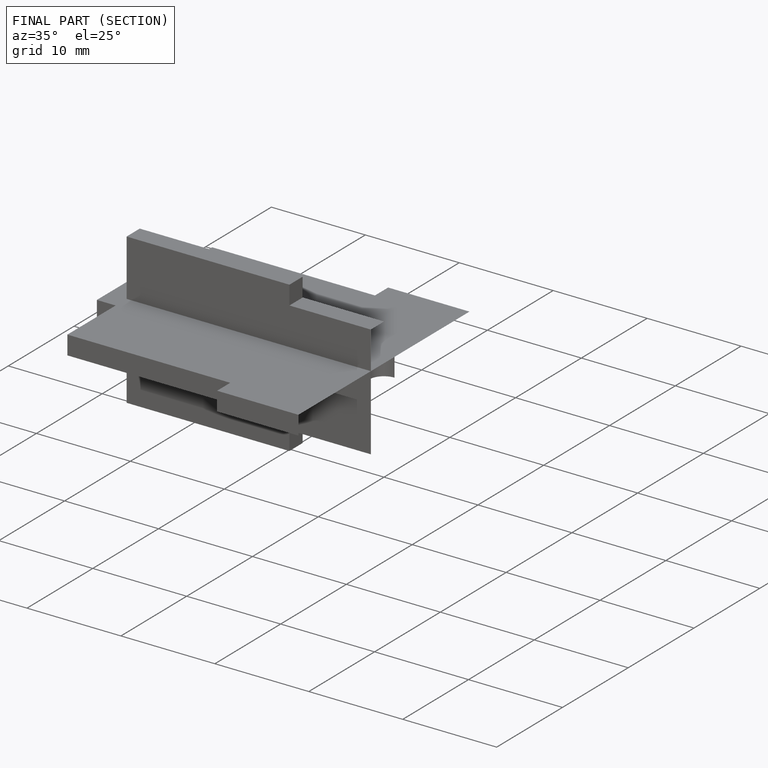
[diagram: finished part — half-section view (interior)]
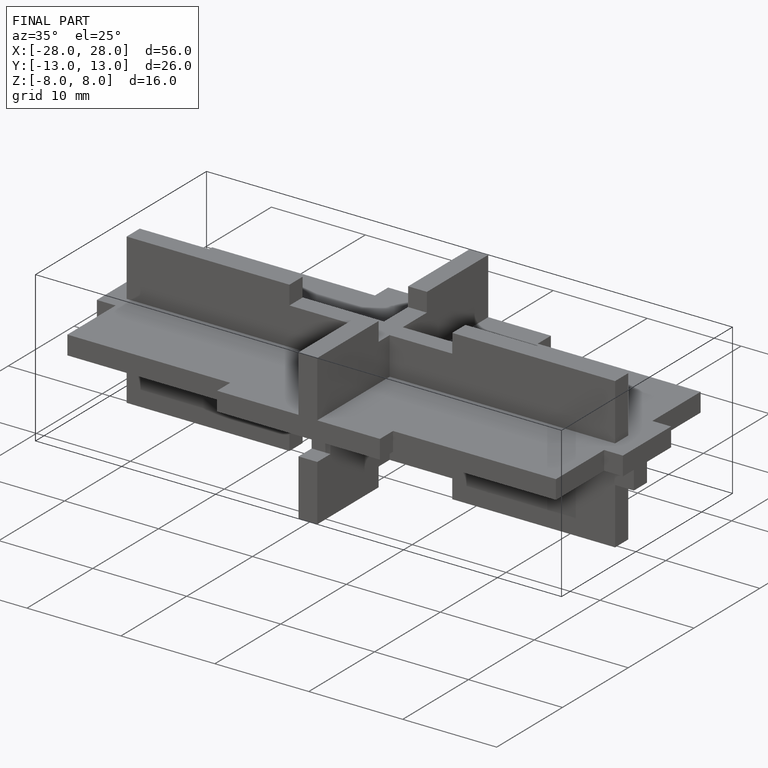
[diagram: finished part — iso view with bounding-box wireframe]
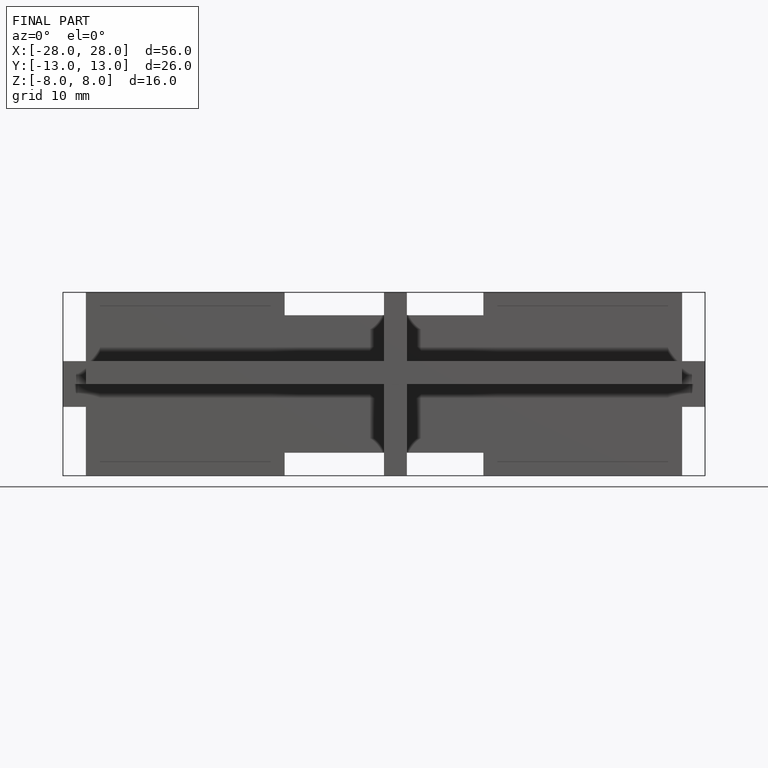
[diagram: finished part — front view with bounding-box wireframe]
